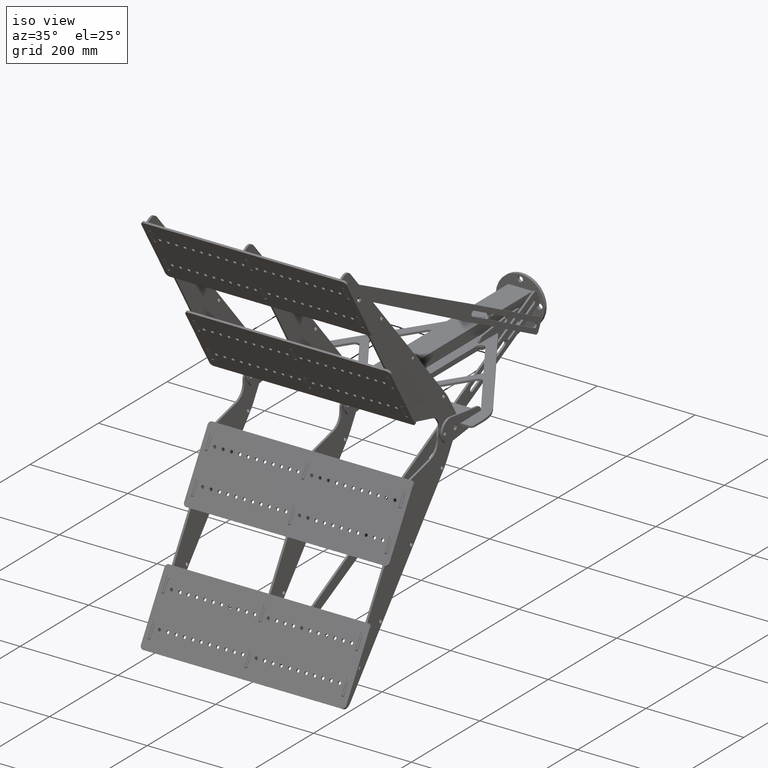
[diagram: clean part render]
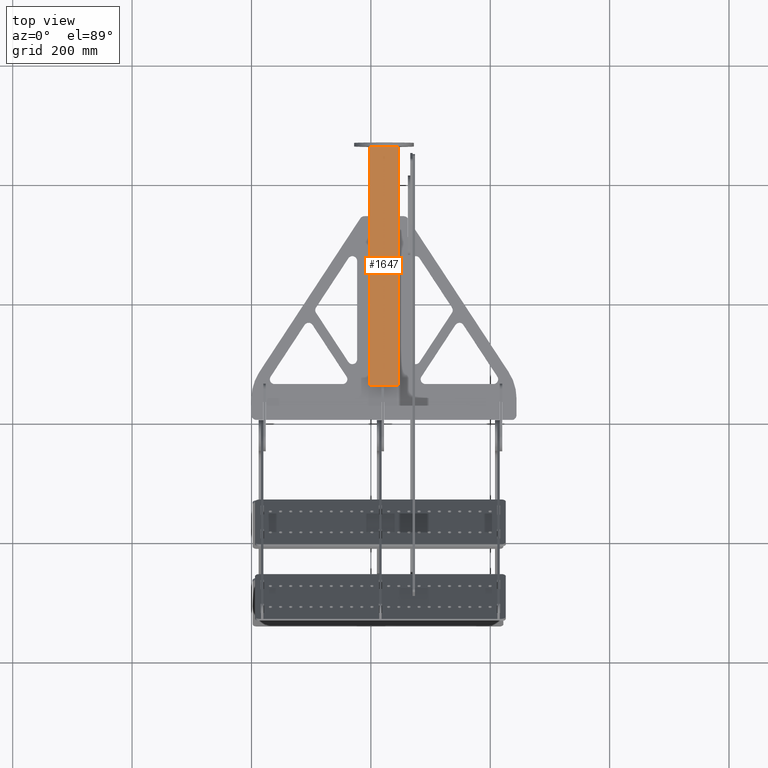
[diagram: tour spotlight — one face highlighted and labeled with its STEP entity id]
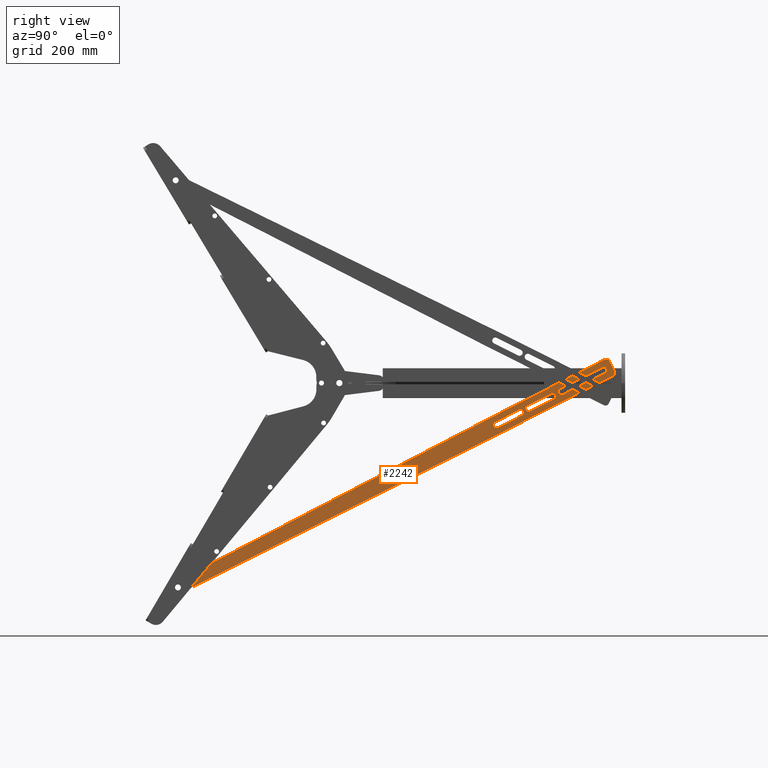
[diagram: tour spotlight — one face highlighted and labeled with its STEP entity id]
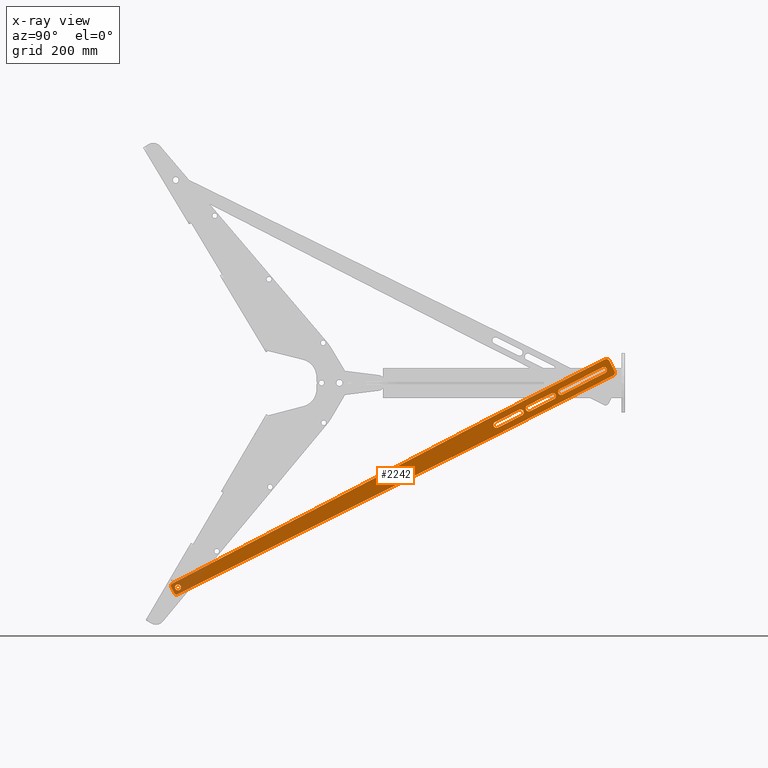
[diagram: x-ray of the same camera — body ghosted, this tour face saturated]
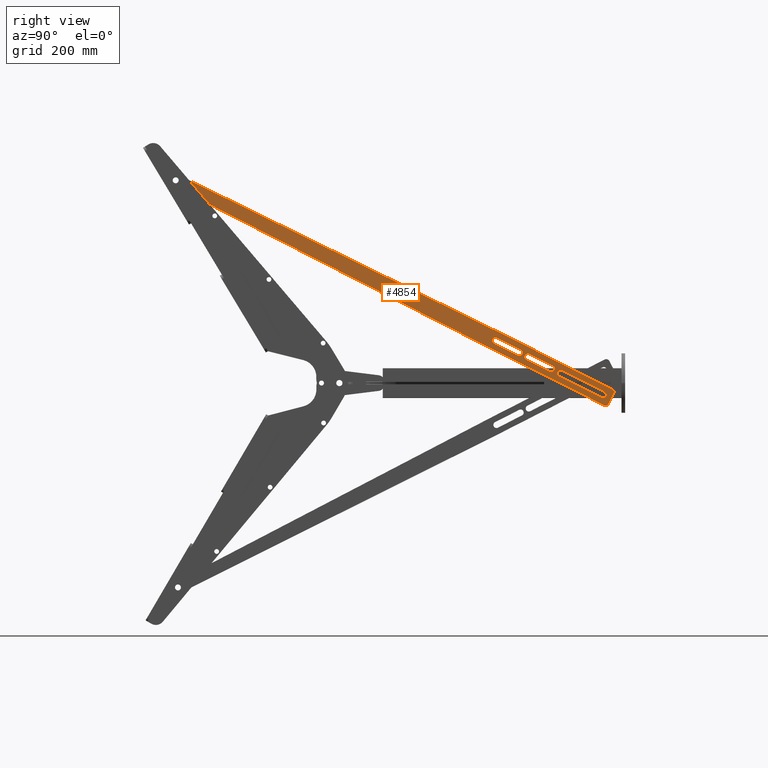
[diagram: tour spotlight — one face highlighted and labeled with its STEP entity id]
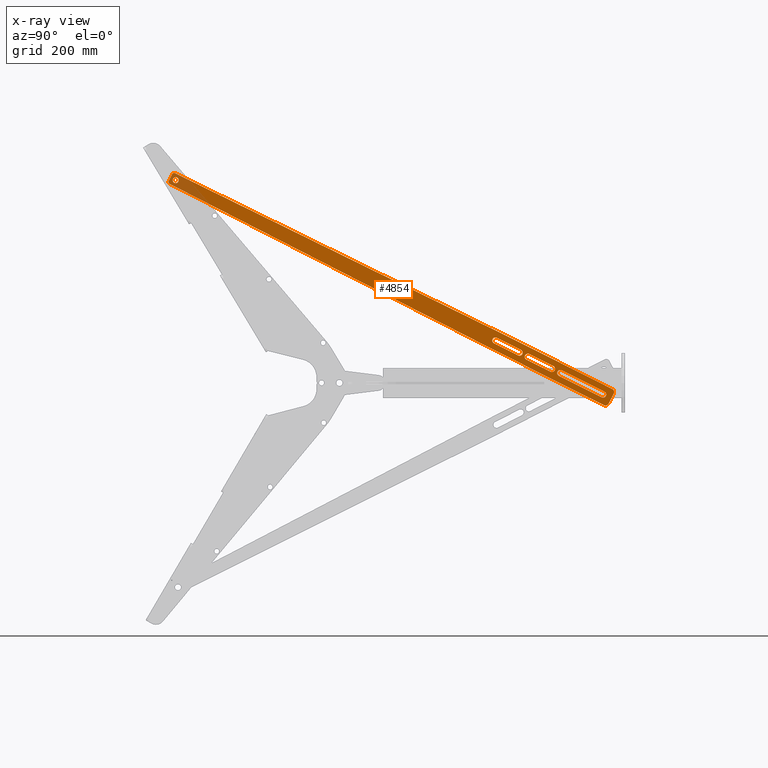
[diagram: x-ray of the same camera — body ghosted, this tour face saturated]
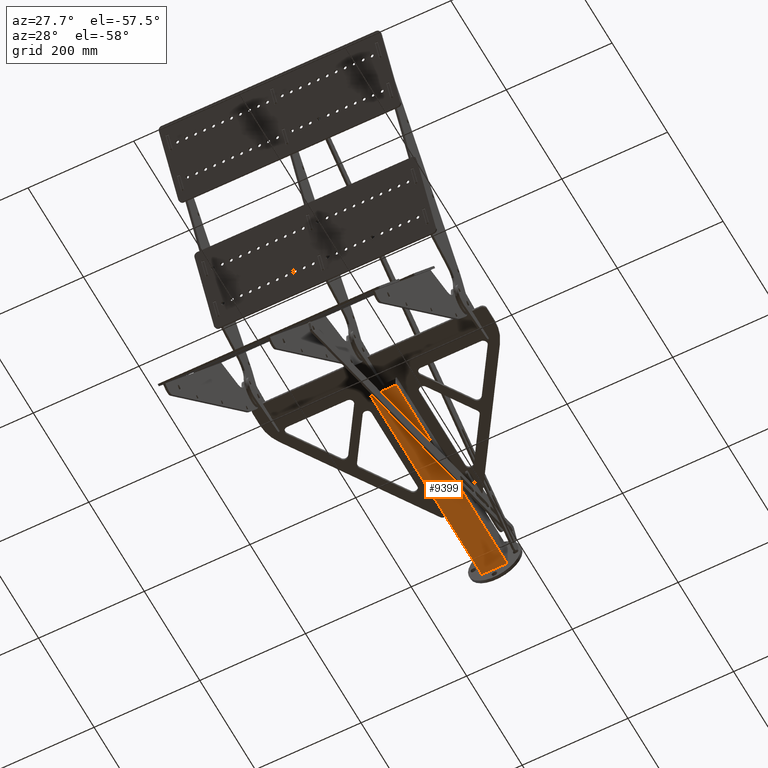
[diagram: tour spotlight — one face highlighted and labeled with its STEP entity id]
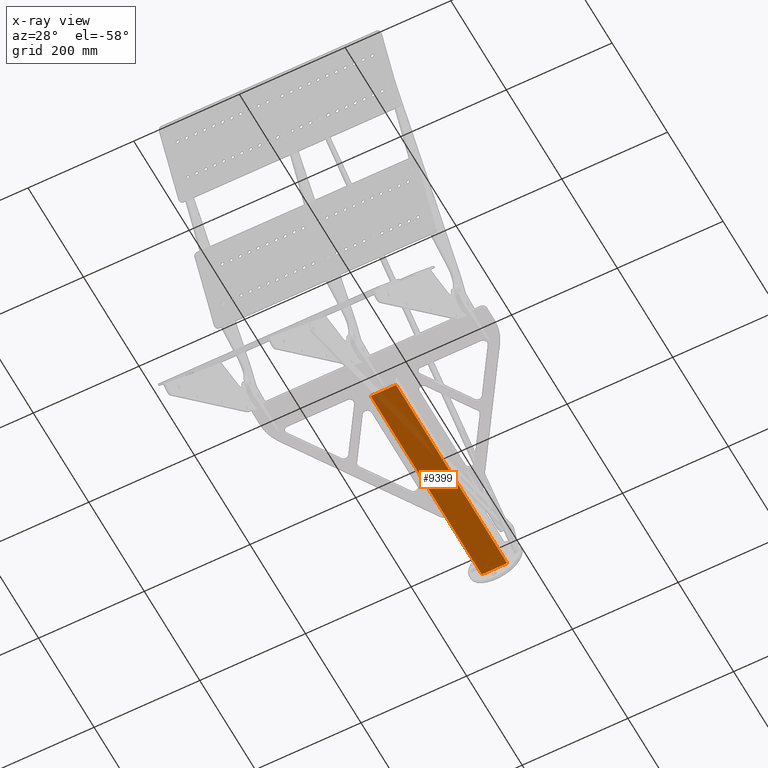
[diagram: x-ray of the same camera — body ghosted, this tour face saturated]
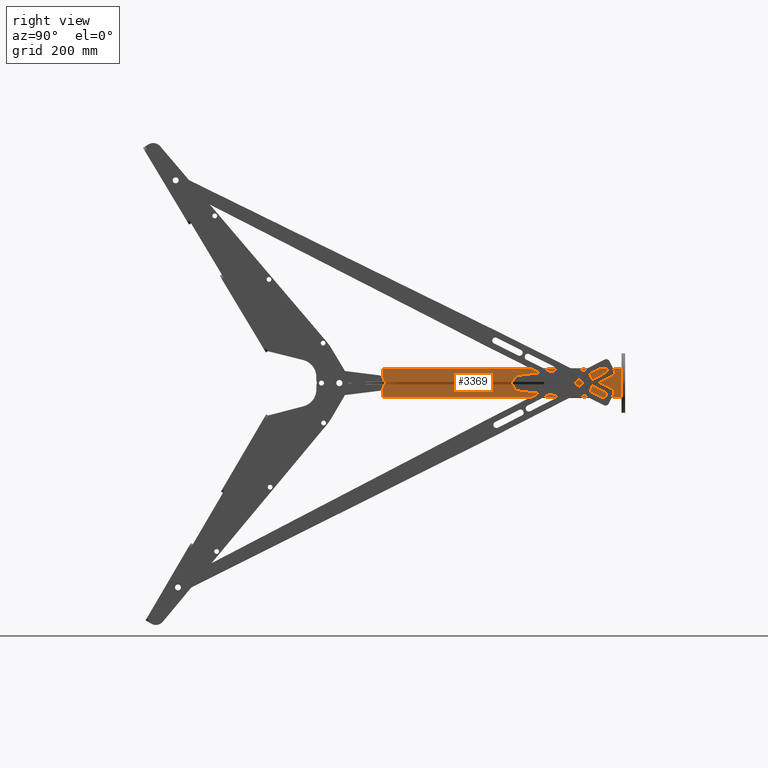
[diagram: tour spotlight — one face highlighted and labeled with its STEP entity id]
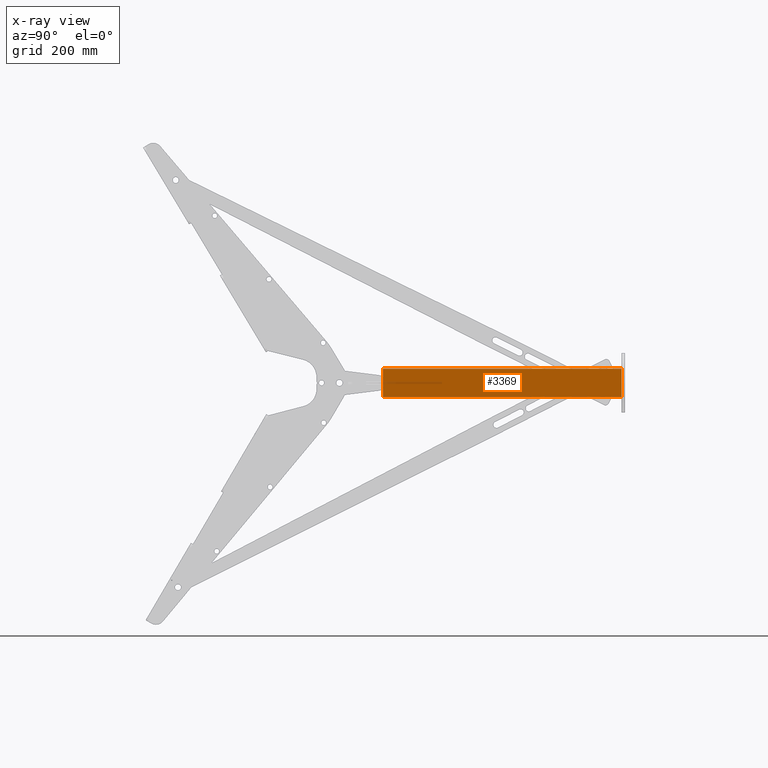
[diagram: x-ray of the same camera — body ghosted, this tour face saturated]
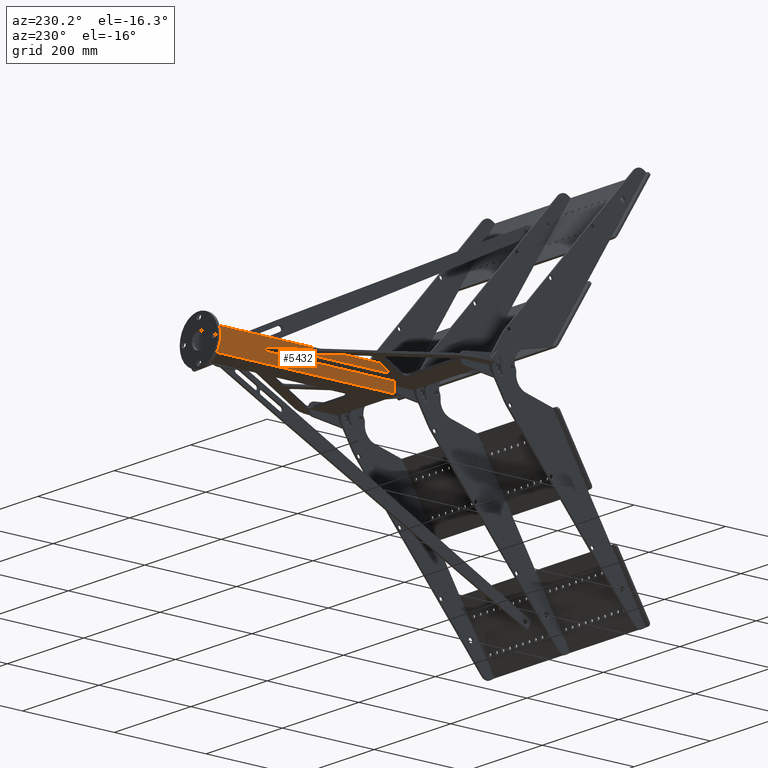
[diagram: tour spotlight — one face highlighted and labeled with its STEP entity id]
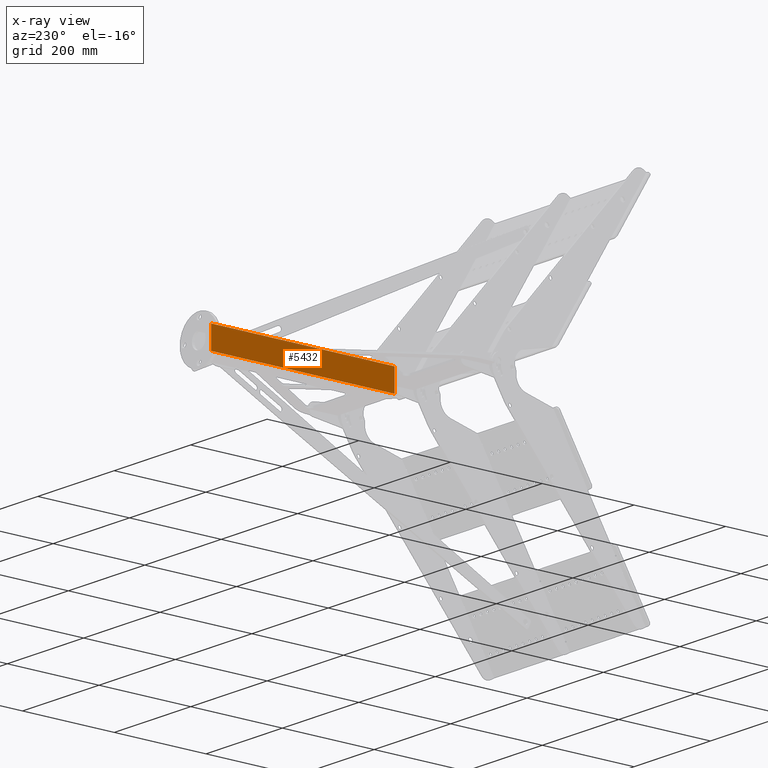
[diagram: x-ray of the same camera — body ghosted, this tour face saturated]
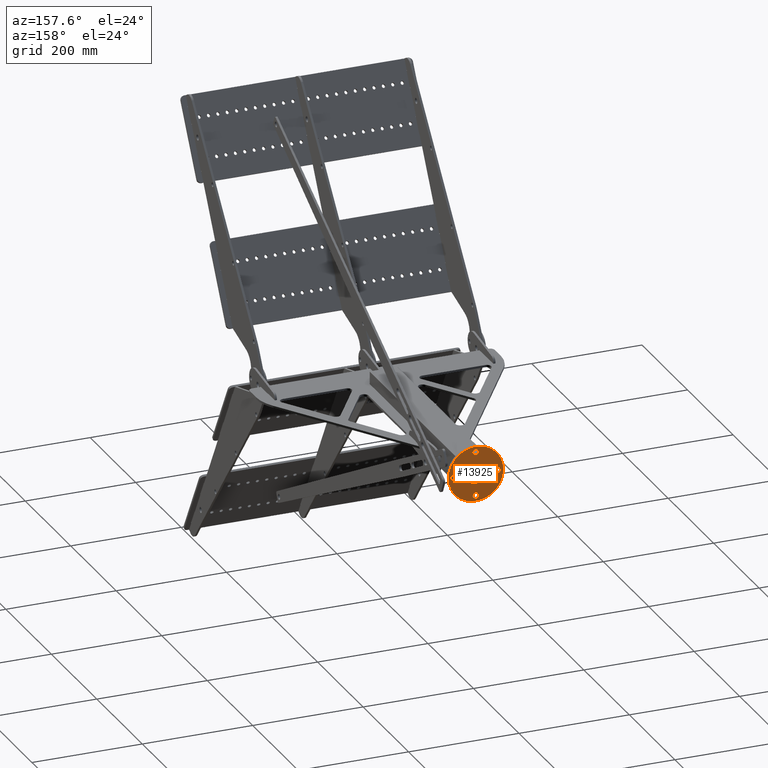
[diagram: tour spotlight — one face highlighted and labeled with its STEP entity id]
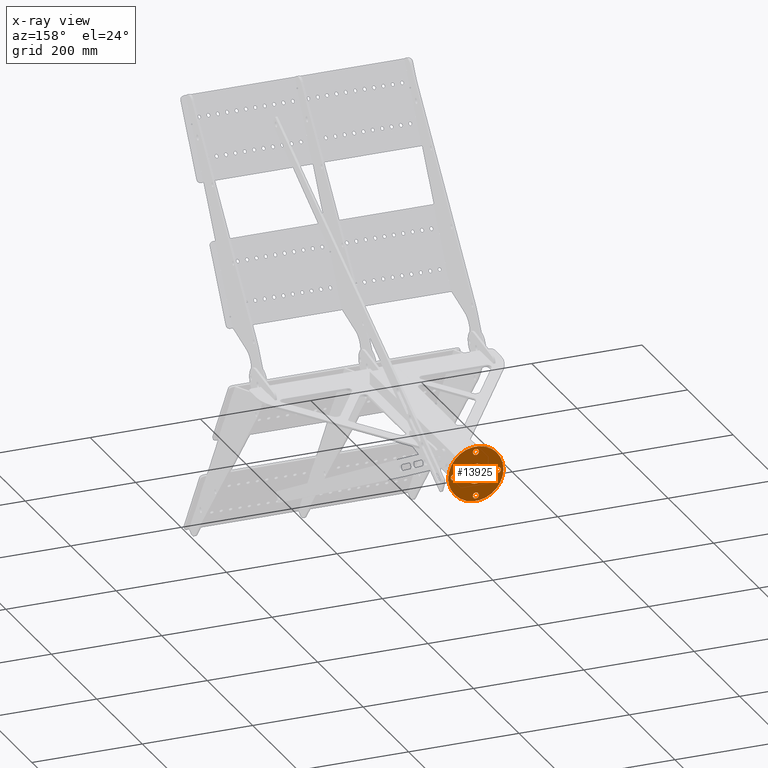
[diagram: x-ray of the same camera — body ghosted, this tour face saturated]
A machine part: a face-by-face anatomy tour. The part has 1032 B-rep faces; the first image is the clean iso view, then the 7 largest visible faces are spotlighted one at a time (largest first), each with its STEP entity span.

Face 1 — top view, entity #1647. In plain terms, the highlighted planar face has unit normal (-0, -0, -1).
Definition (entity closure, byte-faithful):
#536 = CARTESIAN_POINT ( 'NONE',  ( 1.000000000000000900, 4.163336342344337000E-014, 0.0000000000000000000 ) ) ;
#649 = ORIENTED_EDGE ( 'NONE', *, *, #12553, .F. ) ;
#1647 = ADVANCED_FACE ( 'NONE', ( #2212 ), #5972, .F. ) ;
#1662 = EDGE_CURVE ( 'NONE', #14036, #10558, #4104, .T. ) ;
#1783 = EDGE_CURVE ( 'NONE', #10558, #12033, #10462, .T. ) ;
#2212 = FACE_OUTER_BOUND ( 'NONE', #11487, .T. ) ;
#3420 = DIRECTION ( 'NONE',  ( -0.0000000000000000000, 1.000000000000000000, 0.0000000000000000000 ) ) ;
#3641 = VERTEX_POINT ( 'NONE', #12673 ) ;
#4104 = LINE ( 'NONE', #13889, #7571 ) ;
#4326 = CARTESIAN_POINT ( 'NONE',  ( 1.000000000000000900, 4.163336342344337000E-014, 400.0000000000000000 ) ) ;
#4561 = EDGE_CURVE ( 'NONE', #3641, #14036, #9189, .T. ) ;
#4733 = DIRECTION ( 'NONE',  ( -0.0000000000000000000, 0.0000000000000000000, -1.000000000000000000 ) ) ;
#5627 = DIRECTION ( 'NONE',  ( 0.0000000000000000000, -0.0000000000000000000, 1.000000000000000000 ) ) ;
#5972 = PLANE ( 'NONE',  #12382 ) ;
#6960 = VECTOR ( 'NONE', #10245, 1000.000000000000000 ) ;
#7018 = ORIENTED_EDGE ( 'NONE', *, *, #4561, .F. ) ;
#7571 = VECTOR ( 'NONE', #4733, 1000.000000000000000 ) ;
#9189 = LINE ( 'NONE', #13550, #15729 ) ;
#9200 = CARTESIAN_POINT ( 'NONE',  ( 48.99999999999998600, 4.163336342344337000E-014, 400.0000000000000000 ) ) ;
#10245 = DIRECTION ( 'NONE',  ( -1.000000000000000000, -0.0000000000000000000, -0.0000000000000000000 ) ) ;
#10462 = LINE ( 'NONE', #16747, #6960 ) ;
#10477 = ORIENTED_EDGE ( 'NONE', *, *, #1783, .F. ) ;
#10558 = VERTEX_POINT ( 'NONE', #12378 ) ;
#10988 = DIRECTION ( 'NONE',  ( 1.000000000000000000, 0.0000000000000000000, 0.0000000000000000000 ) ) ;
#11261 = CARTESIAN_POINT ( 'NONE',  ( 1.000000000000000900, 4.163336342344337000E-014, 400.0000000000000000 ) ) ;
#11487 = EDGE_LOOP ( 'NONE', ( #13779, #7018, #649, #10477 ) ) ;
#12033 = VERTEX_POINT ( 'NONE', #536 ) ;
#12378 = CARTESIAN_POINT ( 'NONE',  ( 48.99999999999998600, 4.163336342344337000E-014, 0.0000000000000000000 ) ) ;
#12382 = AXIS2_PLACEMENT_3D ( 'NONE', #11261, #3420, #12561 ) ;
#12553 = EDGE_CURVE ( 'NONE', #12033, #3641, #16487, .T. ) ;
#12561 = DIRECTION ( 'NONE',  ( 0.0000000000000000000, -0.0000000000000000000, 1.000000000000000000 ) ) ;
#12673 = CARTESIAN_POINT ( 'NONE',  ( 1.000000000000000900, 4.163336342344337000E-014, 400.0000000000000000 ) ) ;
#13550 = CARTESIAN_POINT ( 'NONE',  ( 1.000000000000000900, 4.163336342344337000E-014, 400.0000000000000000 ) ) ;
#13779 = ORIENTED_EDGE ( 'NONE', *, *, #1662, .F. ) ;
#13889 = CARTESIAN_POINT ( 'NONE',  ( 48.99999999999998600, 4.163336342344337000E-014, 400.0000000000000000 ) ) ;
#14036 = VERTEX_POINT ( 'NONE', #9200 ) ;
#15729 = VECTOR ( 'NONE', #10988, 1000.000000000000000 ) ;
#16090 = VECTOR ( 'NONE', #5627, 1000.000000000000000 ) ;
#16487 = LINE ( 'NONE', #4326, #16090 ) ;
#16747 = CARTESIAN_POINT ( 'NONE',  ( 1.000000000000000900, 4.163336342344337000E-014, 0.0000000000000000000 ) ) ;

Face 2 — right view, entity #2242. An x-ray twin of the same camera follows (body ghosted, this face saturated) — the face is partly hidden behind the body. In plain terms, the highlighted planar face has unit normal (1, 0, 0).
Definition (entity closure, byte-faithful):
#22 = AXIS2_PLACEMENT_3D ( 'NONE', #3836, #12998, #5164 ) ;
#66 = CARTESIAN_POINT ( 'NONE',  ( -98.19999999999984700, 19.19999999999987100, 4.000000000000447600 ) ) ;
#84 = CIRCLE ( 'NONE', #3111, 5.200000000000012600 ) ;
#127 = LINE ( 'NONE', #2808, #13663 ) ;
#238 = CARTESIAN_POINT ( 'NONE',  ( 73.60000000000043500, 10.00000000000009200, 4.000000000000225600 ) ) ;
#320 = VERTEX_POINT ( 'NONE', #12945 ) ;
#397 = DIRECTION ( 'NONE',  ( 1.000000000000000000, 5.551115123125767300E-017, -0.0000000000000000000 ) ) ;
#505 = ORIENTED_EDGE ( 'NONE', *, *, #567, .F. ) ;
#567 = EDGE_CURVE ( 'NONE', #8335, #13135, #10838, .T. ) ;
#660 = DIRECTION ( 'NONE',  ( 7.877038065104239500E-028, -7.186337957288756400E-028, -1.000000000000000000 ) ) ;
#743 = ORIENTED_EDGE ( 'NONE', *, *, #9050, .T. ) ;
#928 = EDGE_CURVE ( 'NONE', #16172, #16154, #13412, .T. ) ;
#945 = CIRCLE ( 'NONE', #14110, 5.200000000000009900 ) ;
#961 = DIRECTION ( 'NONE',  ( -0.9999630646787616200, 0.008594723861701880300, -0.0000000000000000000 ) ) ;
#991 = DIRECTION ( 'NONE',  ( -1.000000000000000000, 0.0000000000000000000, 0.0000000000000000000 ) ) ;
#1147 = CARTESIAN_POINT ( 'NONE',  ( -92.19999999999976100, -5.200000000000190200, 3.999999999999781500 ) ) ;
#1244 = AXIS2_PLACEMENT_3D ( 'NONE', #10816, #2935, #12108 ) ;
#1324 = DIRECTION ( 'NONE',  ( -1.000000000000000000, 0.0000000000000000000, 0.0000000000000000000 ) ) ;
#1353 = VECTOR ( 'NONE', #12771, 1000.000000000000000 ) ;
#1377 = EDGE_CURVE ( 'NONE', #14461, #4929, #14924, .T. ) ;
#1396 = CARTESIAN_POINT ( 'NONE',  ( 724.0000000000026100, 4.000000000000114600, 4.000000000000225600 ) ) ;
#1466 = DIRECTION ( 'NONE',  ( -5.551115123125767300E-017, 1.000000000000000000, -0.0000000000000000000 ) ) ;
#1509 = LINE ( 'NONE', #16419, #8484 ) ;
#1575 = DIRECTION ( 'NONE',  ( -1.000000000000000000, 0.0000000000000000000, 0.0000000000000000000 ) ) ;
#1838 = ORIENTED_EDGE ( 'NONE', *, *, #11864, .T. ) ;
#1891 = LINE ( 'NONE', #14262, #8471 ) ;
#2035 = CARTESIAN_POINT ( 'NONE',  ( -2.599999999999769200, 15.20000000000001000, 3.999999999999781500 ) ) ;
#2242 = ADVANCED_FACE ( 'N', ( #15087, #8563, #11630, #8160, #4651 ), #7882, .T. ) ;
#2299 = DIRECTION ( 'NONE',  ( 7.877038065104239500E-028, -7.186337957288756400E-028, -1.000000000000000000 ) ) ;
#2339 = DIRECTION ( 'NONE',  ( 7.877038065104239500E-028, -7.186337957288756400E-028, -1.000000000000000000 ) ) ;
#2355 = VERTEX_POINT ( 'NONE', #2035 ) ;
#2412 = CARTESIAN_POINT ( 'NONE',  ( -83.00000000000007100, 9.999999999999953800, 3.999999999999559500 ) ) ;
#2508 = ORIENTED_EDGE ( 'NONE', *, *, #3848, .F. ) ;
#2538 = EDGE_LOOP ( 'NONE', ( #12021, #5137, #10042, #10758, #14380 ) ) ;
#2607 = ORIENTED_EDGE ( 'NONE', *, *, #10365, .T. ) ;
#2709 = CARTESIAN_POINT ( 'NONE',  ( 12.80000000000036700, 15.20000000000012000, 3.999999999999781500 ) ) ;
#2721 = DIRECTION ( 'NONE',  ( 0.0000000000000000000, -1.000000000000000000, 7.186337957288756400E-028 ) ) ;
#2808 = CARTESIAN_POINT ( 'NONE',  ( 728.0000000000019300, 4.000000000000114600, 4.000000000000114600 ) ) ;
#2882 = EDGE_CURVE ( 'NONE', #8335, #15651, #14866, .T. ) ;
#2935 = DIRECTION ( 'NONE',  ( 7.877038065104239500E-028, -7.186337957288756400E-028, -1.000000000000000000 ) ) ;
#3009 = CARTESIAN_POINT ( 'NONE',  ( 58.20000000000045800, 15.20000000000021600, 4.000000000000003600 ) ) ;
#3079 = CIRCLE ( 'NONE', #11564, 5.200000000000024200 ) ;
#3111 = AXIS2_PLACEMENT_3D ( 'NONE', #12666, #9178, #1324 ) ;
#3167 = ORIENTED_EDGE ( 'NONE', *, *, #928, .T. ) ;
#3187 = CIRCLE ( 'NONE', #3265, 5.200000000000009900 ) ;
#3265 = AXIS2_PLACEMENT_3D ( 'NONE', #5216, #14364, #6528 ) ;
#3334 = ORIENTED_EDGE ( 'NONE', *, *, #9390, .T. ) ;
#3346 = AXIS2_PLACEMENT_3D ( 'NONE', #3899, #13074, #5219 ) ;
#3591 = VERTEX_POINT ( 'NONE', #6078 ) ;
#3709 = VECTOR ( 'NONE', #12324, 1000.000000000000000 ) ;
#3745 = DIRECTION ( 'NONE',  ( -1.000000000000000000, 0.0000000000000000000, 0.0000000000000000000 ) ) ;
#3788 = DIRECTION ( 'NONE',  ( 7.877038065104239500E-028, -7.186337957288756400E-028, -1.000000000000000000 ) ) ;
#3836 = CARTESIAN_POINT ( 'NONE',  ( 73.60000000000043500, 10.00000000000009200, 4.000000000000225600 ) ) ;
#3848 = EDGE_CURVE ( 'NONE', #320, #10008, #10747, .T. ) ;
#3854 = CARTESIAN_POINT ( 'NONE',  ( -92.19999999999977500, 25.19999999999993500, 4.000000000000003600 ) ) ;
#3865 = EDGE_CURVE ( 'NONE', #9762, #7370, #10309, .T. ) ;
#3899 = CARTESIAN_POINT ( 'NONE',  ( 718.0000000000023900, 10.00000000000009200, 3.999999999999781500 ) ) ;
#4048 = LINE ( 'NONE', #5434, #6712 ) ;
#4235 = ORIENTED_EDGE ( 'NONE', *, *, #11886, .T. ) ;
#4250 = DIRECTION ( 'NONE',  ( 7.877038065104239500E-028, -7.186337957288756400E-028, -1.000000000000000000 ) ) ;
#4284 = EDGE_CURVE ( 'NONE', #6840, #15927, #12862, .T. ) ;
#4365 = AXIS2_PLACEMENT_3D ( 'NONE', #10183, #2299, #11484 ) ;
#4424 = EDGE_CURVE ( 'NONE', #15611, #9430, #945, .T. ) ;
#4583 = AXIS2_PLACEMENT_3D ( 'NONE', #4861, #14000, #6156 ) ;
#4587 = CARTESIAN_POINT ( 'NONE',  ( 119.0000000000007700, 25.20000000000003800, 3.999999999999633200 ) ) ;
#4651 = FACE_BOUND ( 'NONE', #10049, .T. ) ;
#4861 = CARTESIAN_POINT ( 'NONE',  ( 12.80000000000058900, 9.999999999999870300, 3.999999999999781500 ) ) ;
#4929 = VERTEX_POINT ( 'NONE', #3854 ) ;
#4946 = CARTESIAN_POINT ( 'NONE',  ( -92.20000000000000300, -5.200000000000190200, 3.999999999999781500 ) ) ;
#4993 = DIRECTION ( 'NONE',  ( -1.000000000000000000, -5.551115123125767300E-017, -0.0000000000000000000 ) ) ;
#5062 = CARTESIAN_POINT ( 'NONE',  ( 12.80000000000014500, 15.20000000000035500, 4.000000000000003600 ) ) ;
#5137 = ORIENTED_EDGE ( 'NONE', *, *, #15863, .T. ) ;
#5164 = DIRECTION ( 'NONE',  ( -1.000000000000000000, 0.0000000000000000000, 0.0000000000000000000 ) ) ;
#5216 = CARTESIAN_POINT ( 'NONE',  ( -83.00000000000007100, 9.999999999999953800, 3.999999999999559500 ) ) ;
#5219 = DIRECTION ( 'NONE',  ( -1.000000000000000000, 0.0000000000000000000, 0.0000000000000000000 ) ) ;
#5434 = CARTESIAN_POINT ( 'NONE',  ( 119.0000000000005000, -5.199999999999816300, 4.000000000000003600 ) ) ;
#5588 = EDGE_LOOP ( 'NONE', ( #7900, #10126 ) ) ;
#5604 = VERTEX_POINT ( 'NONE', #9470 ) ;
#5626 = ORIENTED_EDGE ( 'NONE', *, *, #5766, .T. ) ;
#5647 = VECTOR ( 'NONE', #397, 1000.000000000000000 ) ;
#5656 = ORIENTED_EDGE ( 'NONE', *, *, #12902, .F. ) ;
#5677 = VERTEX_POINT ( 'NONE', #3009 ) ;
#5766 = EDGE_CURVE ( 'NONE', #2355, #5604, #84, .T. ) ;
#5851 = VERTEX_POINT ( 'NONE', #2709 ) ;
#5883 = DIRECTION ( 'NONE',  ( 7.877038065104239500E-028, -7.186337957288756400E-028, -1.000000000000000000 ) ) ;
#6029 = ORIENTED_EDGE ( 'NONE', *, *, #4424, .T. ) ;
#6078 = CARTESIAN_POINT ( 'NONE',  ( 58.20000000000044300, 4.800000000000203200, 4.000000000000003600 ) ) ;
#6112 = ORIENTED_EDGE ( 'NONE', *, *, #1377, .F. ) ;
#6156 = DIRECTION ( 'NONE',  ( -1.000000000000000000, 0.0000000000000000000, 0.0000000000000000000 ) ) ;
#6163 = ORIENTED_EDGE ( 'NONE', *, *, #12850, .T. ) ;
#6336 = EDGE_CURVE ( 'NONE', #6385, #15611, #15619, .T. ) ;
#6385 = VERTEX_POINT ( 'NONE', #13877 ) ;
#6528 = DIRECTION ( 'NONE',  ( -1.000000000000000000, 0.0000000000000000000, 0.0000000000000000000 ) ) ;
#6699 = AXIS2_PLACEMENT_3D ( 'NONE', #11641, #3788, #12958 ) ;
#6712 = VECTOR ( 'NONE', #15831, 1000.000000000000000 ) ;
#6840 = VERTEX_POINT ( 'NONE', #12591 ) ;
#7203 = ORIENTED_EDGE ( 'NONE', *, *, #6336, .T. ) ;
#7210 = CARTESIAN_POINT ( 'NONE',  ( 723.0000000000023900, 10.00000000000009200, 3.999999999999781500 ) ) ;
#7215 = EDGE_CURVE ( 'NONE', #9047, #14149, #8126, .T. ) ;
#7370 = VERTEX_POINT ( 'NONE', #14936 ) ;
#7421 = VECTOR ( 'NONE', #14325, 1000.000000000000000 ) ;
#7512 = EDGE_CURVE ( 'NONE', #5677, #5851, #16061, .T. ) ;
#7576 = AXIS2_PLACEMENT_3D ( 'NONE', #1396, #10597, #2721 ) ;
#7751 = DIRECTION ( 'NONE',  ( -1.000000000000000000, -5.551115123125767300E-017, -0.0000000000000000000 ) ) ;
#7882 = PLANE ( 'NONE',  #7576 ) ;
#7900 = ORIENTED_EDGE ( 'NONE', *, *, #10847, .T. ) ;
#8006 = VECTOR ( 'NONE', #4993, 1000.000000000000000 ) ;
#8066 = CARTESIAN_POINT ( 'NONE',  ( -98.19999999999984700, 19.20000000000010600, 4.000000000000447600 ) ) ;
#8126 = CIRCLE ( 'NONE', #1244, 5.000000000000004400 ) ;
#8160 = FACE_OUTER_BOUND ( 'NONE', #15071, .T. ) ;
#8227 = CARTESIAN_POINT ( 'NONE',  ( 73.60000000000046300, 4.799999999999998900, 4.000000000000225600 ) ) ;
#8335 = VERTEX_POINT ( 'NONE', #1147 ) ;
#8414 = LINE ( 'NONE', #8877, #15345 ) ;
#8471 = VECTOR ( 'NONE', #7751, 1000.000000000000000 ) ;
#8484 = VECTOR ( 'NONE', #8608, 1000.000000000000000 ) ;
#8540 = CARTESIAN_POINT ( 'NONE',  ( 724.0000000000026100, 4.000000000000114600, 4.000000000000114600 ) ) ;
#8557 = CARTESIAN_POINT ( 'NONE',  ( -83.00000000000001400, 15.19999999999991000, 3.999999999999670500 ) ) ;
#8563 = FACE_BOUND ( 'NONE', #16396, .T. ) ;
#8608 = DIRECTION ( 'NONE',  ( -1.000000000000000000, -5.551115123125767300E-017, -0.0000000000000000000 ) ) ;
#8764 = EDGE_CURVE ( 'NONE', #8790, #9989, #3187, .T. ) ;
#8790 = VERTEX_POINT ( 'NONE', #15727 ) ;
#8849 = DIRECTION ( 'NONE',  ( 7.877038065104239500E-028, -7.186337957288756400E-028, -1.000000000000000000 ) ) ;
#8877 = CARTESIAN_POINT ( 'NONE',  ( 119.0000000000006000, 25.20000000000008500, 3.999999999999781500 ) ) ;
#9047 = VERTEX_POINT ( 'NONE', #7210 ) ;
#9050 = EDGE_CURVE ( 'NONE', #9989, #12711, #16470, .T. ) ;
#9133 = LINE ( 'NONE', #8227, #5647 ) ;
#9178 = DIRECTION ( 'NONE',  ( 7.877038065104239500E-028, -7.186337957288756400E-028, -1.000000000000000000 ) ) ;
#9390 = EDGE_CURVE ( 'NONE', #10630, #4929, #1509, .T. ) ;
#9424 = DIRECTION ( 'NONE',  ( 7.877038065104239500E-028, -7.186337957288756400E-028, -1.000000000000000000 ) ) ;
#9430 = VERTEX_POINT ( 'NONE', #11283 ) ;
#9470 = CARTESIAN_POINT ( 'NONE',  ( -2.599999999999712800, 4.799999999999958100, 3.999999999999781500 ) ) ;
#9531 = AXIS2_PLACEMENT_3D ( 'NONE', #10222, #2339, #11521 ) ;
#9538 = CARTESIAN_POINT ( 'NONE',  ( 713.0000000000023900, 10.00000000000009200, 3.999999999999781500 ) ) ;
#9575 = CARTESIAN_POINT ( 'NONE',  ( -98.19999999999984700, 0.7999999999997521300, 4.000000000000114600 ) ) ;
#9596 = EDGE_CURVE ( 'NONE', #16172, #9430, #1891, .T. ) ;
#9762 = VERTEX_POINT ( 'NONE', #14603 ) ;
#9844 = DIRECTION ( 'NONE',  ( -1.000000000000000000, 0.0000000000000000000, 0.0000000000000000000 ) ) ;
#9885 = CARTESIAN_POINT ( 'NONE',  ( 728.0000000000020500, 16.00000000000008500, 3.999999999999948000 ) ) ;
#9989 = VERTEX_POINT ( 'NONE', #13733 ) ;
#10008 = VERTEX_POINT ( 'NONE', #9885 ) ;
#10035 = CIRCLE ( 'NONE', #3346, 5.000000000000004400 ) ;
#10042 = ORIENTED_EDGE ( 'NONE', *, *, #10539, .F. ) ;
#10049 = EDGE_LOOP ( 'NONE', ( #14434, #3167, #12379, #7203, #6029 ) ) ;
#10126 = ORIENTED_EDGE ( 'NONE', *, *, #7215, .T. ) ;
#10157 = AXIS2_PLACEMENT_3D ( 'NONE', #8540, #660, #9844 ) ;
#10183 = CARTESIAN_POINT ( 'NONE',  ( 119.0000000000006000, 9.999999999999980500, 3.999999999999337400 ) ) ;
#10222 = CARTESIAN_POINT ( 'NONE',  ( -92.19999999999983200, 19.19999999999971900, 4.000000000000447600 ) ) ;
#10296 = LINE ( 'NONE', #8066, #16832 ) ;
#10309 = CIRCLE ( 'NONE', #10157, 4.000000000000003600 ) ;
#10365 = EDGE_CURVE ( 'NONE', #14461, #13135, #10296, .T. ) ;
#10502 = CARTESIAN_POINT ( 'NONE',  ( 119.0000000000006500, -5.199999999999936200, 3.999999999999929800 ) ) ;
#10539 = EDGE_CURVE ( 'NONE', #6840, #3591, #10721, .T. ) ;
#10597 = DIRECTION ( 'NONE',  ( 6.723298176339379800E-028, 7.186337957288756400E-028, 1.000000000000000000 ) ) ;
#10630 = VERTEX_POINT ( 'NONE', #4587 ) ;
#10721 = LINE ( 'NONE', #10974, #3709 ) ;
#10747 = CIRCLE ( 'NONE', #11052, 4.000000000000003600 ) ;
#10758 = ORIENTED_EDGE ( 'NONE', *, *, #4284, .T. ) ;
#10816 = CARTESIAN_POINT ( 'NONE',  ( 718.0000000000023900, 10.00000000000009200, 3.999999999999781500 ) ) ;
#10838 = CIRCLE ( 'NONE', #6699, 6.000000000000019500 ) ;
#10847 = EDGE_CURVE ( 'NONE', #14149, #9047, #10035, .T. ) ;
#10974 = CARTESIAN_POINT ( 'NONE',  ( 12.80000000000042200, 4.800000000000221000, 4.000000000000003600 ) ) ;
#11052 = AXIS2_PLACEMENT_3D ( 'NONE', #13736, #5883, #15034 ) ;
#11126 = ORIENTED_EDGE ( 'NONE', *, *, #14998, .F. ) ;
#11283 = CARTESIAN_POINT ( 'NONE',  ( 73.60000000000036400, 15.20000000000020700, 3.999999999999781500 ) ) ;
#11484 = DIRECTION ( 'NONE',  ( -1.000000000000000000, 0.0000000000000000000, 0.0000000000000000000 ) ) ;
#11521 = DIRECTION ( 'NONE',  ( -1.000000000000000000, 0.0000000000000000000, 0.0000000000000000000 ) ) ;
#11564 = AXIS2_PLACEMENT_3D ( 'NONE', #16674, #8849, #991 ) ;
#11586 = DIRECTION ( 'NONE',  ( 7.877038065104239500E-028, -7.186337957288756400E-028, -1.000000000000000000 ) ) ;
#11630 = FACE_BOUND ( 'NONE', #5588, .T. ) ;
#11641 = CARTESIAN_POINT ( 'NONE',  ( -92.19999999999977500, 0.7999999999999118900, 3.999999999999781500 ) ) ;
#11864 = EDGE_CURVE ( 'NONE', #9762, #10008, #127, .T. ) ;
#11886 = EDGE_CURVE ( 'NONE', #15651, #7370, #4048, .T. ) ;
#12021 = ORIENTED_EDGE ( 'NONE', *, *, #7512, .F. ) ;
#12091 = CARTESIAN_POINT ( 'NONE',  ( 12.80000000000058900, 9.999999999999870300, 3.999999999999781500 ) ) ;
#12108 = DIRECTION ( 'NONE',  ( -1.000000000000000000, 0.0000000000000000000, 0.0000000000000000000 ) ) ;
#12319 = ORIENTED_EDGE ( 'NONE', *, *, #2882, .T. ) ;
#12324 = DIRECTION ( 'NONE',  ( 1.000000000000000000, -3.885780586188036100E-016, -0.0000000000000000000 ) ) ;
#12379 = ORIENTED_EDGE ( 'NONE', *, *, #12566, .F. ) ;
#12566 = EDGE_CURVE ( 'NONE', #6385, #16154, #9133, .T. ) ;
#12569 = VECTOR ( 'NONE', #12884, 1000.000000000000000 ) ;
#12591 = CARTESIAN_POINT ( 'NONE',  ( 12.80000000000056000, 4.800000000000038900, 4.000000000000003600 ) ) ;
#12666 = CARTESIAN_POINT ( 'NONE',  ( -2.599999999999713700, 10.00000000000009200, 3.999999999999781500 ) ) ;
#12676 = AXIS2_PLACEMENT_3D ( 'NONE', #12091, #4250, #13407 ) ;
#12711 = VERTEX_POINT ( 'NONE', #8557 ) ;
#12771 = DIRECTION ( 'NONE',  ( 1.000000000000000000, 5.551115123125767300E-017, -0.0000000000000000000 ) ) ;
#12834 = CARTESIAN_POINT ( 'NONE',  ( -82.99999999999995700, 15.19999999999991000, 3.999999999999781500 ) ) ;
#12850 = EDGE_CURVE ( 'NONE', #320, #10630, #8414, .T. ) ;
#12862 = CIRCLE ( 'NONE', #12676, 5.200000000000014400 ) ;
#12884 = DIRECTION ( 'NONE',  ( -1.000000000000000000, -3.885780586188036100E-016, -0.0000000000000000000 ) ) ;
#12902 = EDGE_CURVE ( 'NONE', #2355, #12711, #14941, .T. ) ;
#12945 = CARTESIAN_POINT ( 'NONE',  ( 723.9999999999766900, 20.00000000000021300, 3.999999999999781500 ) ) ;
#12958 = DIRECTION ( 'NONE',  ( -1.000000000000000000, 0.0000000000000000000, 0.0000000000000000000 ) ) ;
#12963 = CARTESIAN_POINT ( 'NONE',  ( -82.99999999999957400, 4.799999999999832000, 3.999999999999948000 ) ) ;
#12998 = DIRECTION ( 'NONE',  ( 7.877038065104239500E-028, -7.186337957288756400E-028, -1.000000000000000000 ) ) ;
#13074 = DIRECTION ( 'NONE',  ( 7.877038065104239500E-028, -7.186337957288756400E-028, -1.000000000000000000 ) ) ;
#13135 = VERTEX_POINT ( 'NONE', #9575 ) ;
#13313 = EDGE_CURVE ( 'NONE', #15927, #5851, #16334, .T. ) ;
#13407 = DIRECTION ( 'NONE',  ( -1.000000000000000000, 0.0000000000000000000, 0.0000000000000000000 ) ) ;
#13412 = CIRCLE ( 'NONE', #4365, 5.200000000000009900 ) ;
#13500 = AXIS2_PLACEMENT_3D ( 'NONE', #2412, #11586, #3745 ) ;
#13608 = CARTESIAN_POINT ( 'NONE',  ( 119.0000000000006000, 4.800000000000001600, 3.999999999999781500 ) ) ;
#13663 = VECTOR ( 'NONE', #1466, 1000.000000000000000 ) ;
#13733 = CARTESIAN_POINT ( 'NONE',  ( -88.20000000000008800, 9.999999999999953800, 3.999999999999559500 ) ) ;
#13736 = CARTESIAN_POINT ( 'NONE',  ( 724.0000000000022700, 16.00000000000043000, 3.999999999999781500 ) ) ;
#13877 = CARTESIAN_POINT ( 'NONE',  ( 73.60000000000052000, 4.800000000000040700, 4.000000000000225600 ) ) ;
#14000 = DIRECTION ( 'NONE',  ( 7.877038065104239500E-028, -7.186337957288756400E-028, -1.000000000000000000 ) ) ;
#14110 = AXIS2_PLACEMENT_3D ( 'NONE', #238, #9424, #1575 ) ;
#14149 = VERTEX_POINT ( 'NONE', #9538 ) ;
#14167 = CARTESIAN_POINT ( 'NONE',  ( 7.600000000000574300, 9.999999999999870300, 3.999999999999781500 ) ) ;
#14262 = CARTESIAN_POINT ( 'NONE',  ( 73.60000000000027900, 15.20000000000024100, 3.999999999999337400 ) ) ;
#14325 = DIRECTION ( 'NONE',  ( 1.000000000000000000, 5.551115123125767300E-017, -0.0000000000000000000 ) ) ;
#14331 = ORIENTED_EDGE ( 'NONE', *, *, #8764, .T. ) ;
#14334 = ORIENTED_EDGE ( 'NONE', *, *, #3865, .F. ) ;
#14364 = DIRECTION ( 'NONE',  ( 7.877038065104239500E-028, -7.186337957288756400E-028, -1.000000000000000000 ) ) ;
#14380 = ORIENTED_EDGE ( 'NONE', *, *, #13313, .T. ) ;
#14434 = ORIENTED_EDGE ( 'NONE', *, *, #9596, .F. ) ;
#14461 = VERTEX_POINT ( 'NONE', #66 ) ;
#14603 = CARTESIAN_POINT ( 'NONE',  ( 728.0000000000022700, 4.000000000000072800, 4.000000000000114600 ) ) ;
#14792 = LINE ( 'NONE', #12963, #7421 ) ;
#14866 = LINE ( 'NONE', #4946, #1353 ) ;
#14924 = CIRCLE ( 'NONE', #9531, 6.000000000000019500 ) ;
#14936 = CARTESIAN_POINT ( 'NONE',  ( 724.0000000000141000, 5.957278009246060400E-014, 4.000000000000058600 ) ) ;
#14941 = LINE ( 'NONE', #12834, #8006 ) ;
#14998 = EDGE_CURVE ( 'NONE', #8790, #5604, #14792, .T. ) ;
#15034 = DIRECTION ( 'NONE',  ( -1.000000000000000000, 0.0000000000000000000, 0.0000000000000000000 ) ) ;
#15071 = EDGE_LOOP ( 'NONE', ( #12319, #4235, #14334, #1838, #2508, #6163, #3334, #6112, #2607, #505 ) ) ;
#15087 = FACE_BOUND ( 'NONE', #2538, .T. ) ;
#15345 = VECTOR ( 'NONE', #961, 1000.000000000000000 ) ;
#15611 = VERTEX_POINT ( 'NONE', #15612 ) ;
#15612 = CARTESIAN_POINT ( 'NONE',  ( 68.40000000000041800, 10.00000000000009200, 4.000000000000225600 ) ) ;
#15619 = CIRCLE ( 'NONE', #22, 5.200000000000009900 ) ;
#15651 = VERTEX_POINT ( 'NONE', #10502 ) ;
#15727 = CARTESIAN_POINT ( 'NONE',  ( -83.00000000000004300, 4.799999999999887900, 3.999999999999948000 ) ) ;
#15831 = DIRECTION ( 'NONE',  ( 0.9999630646787616200, 0.008594723861701269700, -0.0000000000000000000 ) ) ;
#15863 = EDGE_CURVE ( 'NONE', #5677, #3591, #3079, .T. ) ;
#15900 = DIRECTION ( 'NONE',  ( 5.551115123125767300E-017, -1.000000000000000000, -0.0000000000000000000 ) ) ;
#15927 = VERTEX_POINT ( 'NONE', #14167 ) ;
#16061 = LINE ( 'NONE', #5062, #12569 ) ;
#16154 = VERTEX_POINT ( 'NONE', #13608 ) ;
#16172 = VERTEX_POINT ( 'NONE', #16275 ) ;
#16275 = CARTESIAN_POINT ( 'NONE',  ( 119.0000000000006400, 15.20000000000011800, 3.999999999999337400 ) ) ;
#16334 = CIRCLE ( 'NONE', #4583, 5.200000000000014400 ) ;
#16396 = EDGE_LOOP ( 'NONE', ( #11126, #14331, #743, #5656, #5626 ) ) ;
#16419 = CARTESIAN_POINT ( 'NONE',  ( -92.19999999999974700, 25.19999999999999900, 3.999999999999559500 ) ) ;
#16470 = CIRCLE ( 'NONE', #13500, 5.200000000000009900 ) ;
#16674 = CARTESIAN_POINT ( 'NONE',  ( 58.20000000000052900, 10.00000000000003900, 4.000000000000003600 ) ) ;
#16832 = VECTOR ( 'NONE', #15900, 1000.000000000000000 ) ;

Face 3 — right view, entity #4854. An x-ray twin of the same camera follows (body ghosted, this face saturated) — the face is partly hidden behind the body. In plain terms, the highlighted planar face has unit normal (-1, -0, 0).
Definition (entity closure, byte-faithful):
#10 = CARTESIAN_POINT ( 'NONE',  ( 728.0000000000019300, 16.00000000000008500, 2.220446049250328700E-013 ) ) ;
#172 = EDGE_CURVE ( 'NONE', #10062, #5422, #3868, .T. ) ;
#285 = VECTOR ( 'NONE', #6569, 1000.000000000000000 ) ;
#298 = VERTEX_POINT ( 'NONE', #10 ) ;
#349 = VERTEX_POINT ( 'NONE', #15614 ) ;
#378 = EDGE_CURVE ( 'NONE', #5472, #16103, #11038, .T. ) ;
#457 = CARTESIAN_POINT ( 'NONE',  ( -83.00000000000002800, 4.799999999999943000, -1.110223024623782900E-013 ) ) ;
#540 = FACE_BOUND ( 'NONE', #14718, .T. ) ;
#570 = DIRECTION ( 'NONE',  ( 0.9999630646787616200, 0.008594723861701725900, -6.784931098776514500E-028 ) ) ;
#691 = CARTESIAN_POINT ( 'NONE',  ( 724.0000000000021600, 15.19999999999996400, 2.220446049250232800E-013 ) ) ;
#786 = ORIENTED_EDGE ( 'NONE', *, *, #3512, .F. ) ;
#802 = DIRECTION ( 'NONE',  ( 7.877038065104239500E-028, -7.186337957288756400E-028, -1.000000000000000000 ) ) ;
#1011 = AXIS2_PLACEMENT_3D ( 'NONE', #1652, #10846, #2976 ) ;
#1062 = CARTESIAN_POINT ( 'NONE',  ( 723.9999999999828300, 20.00000000000021300, 2.220446049250298900E-013 ) ) ;
#1105 = VERTEX_POINT ( 'NONE', #7892 ) ;
#1133 = AXIS2_PLACEMENT_3D ( 'NONE', #3303, #12450, #4613 ) ;
#1265 = CARTESIAN_POINT ( 'NONE',  ( -83.00000000000007100, 9.999999999999953800, -4.440892098500626200E-013 ) ) ;
#1292 = CARTESIAN_POINT ( 'NONE',  ( -2.599999999999712800, 4.800000000000045100, 1.110223024626376300E-013 ) ) ;
#1417 = CARTESIAN_POINT ( 'NONE',  ( -92.19999999999977500, 0.7999999999999118900, 0.0000000000000000000 ) ) ;
#1460 = VERTEX_POINT ( 'NONE', #10407 ) ;
#1502 = AXIS2_PLACEMENT_3D ( 'NONE', #7801, #16949, #9094 ) ;
#1522 = EDGE_CURVE ( 'NONE', #1703, #1105, #5308, .T. ) ;
#1611 = EDGE_CURVE ( 'NONE', #2122, #7209, #12286, .T. ) ;
#1652 = CARTESIAN_POINT ( 'NONE',  ( 724.0000000000022700, 16.00000000000043000, 2.220446049250313100E-013 ) ) ;
#1671 = CARTESIAN_POINT ( 'NONE',  ( 119.0000000000008800, 25.20000000000013400, 2.220446049252922800E-013 ) ) ;
#1703 = VERTEX_POINT ( 'NONE', #11369 ) ;
#1873 = CIRCLE ( 'NONE', #2649, 6.000000000000019500 ) ;
#1996 = DIRECTION ( 'NONE',  ( -0.0000000000000000000, 1.000000000000000000, -7.186337957288756400E-028 ) ) ;
#2122 = VERTEX_POINT ( 'NONE', #10175 ) ;
#2269 = AXIS2_PLACEMENT_3D ( 'NONE', #13383, #5521, #14679 ) ;
#2540 = CIRCLE ( 'NONE', #2269, 5.000000000000004400 ) ;
#2599 = DIRECTION ( 'NONE',  ( -1.000000000000000000, 0.0000000000000000000, -7.964461062327508000E-028 ) ) ;
#2624 = AXIS2_PLACEMENT_3D ( 'NONE', #1265, #10478, #2599 ) ;
#2631 = CARTESIAN_POINT ( 'NONE',  ( -92.19999999999983200, 19.19999999999971900, 0.0000000000000000000 ) ) ;
#2636 = VERTEX_POINT ( 'NONE', #16156 ) ;
#2649 = AXIS2_PLACEMENT_3D ( 'NONE', #1417, #10619, #2735 ) ;
#2690 = EDGE_LOOP ( 'NONE', ( #12210, #4008, #9794, #2902, #11693, #5374, #16881, #15052, #14200, #15350 ) ) ;
#2719 = VECTOR ( 'NONE', #10957, 1000.000000000000000 ) ;
#2735 = DIRECTION ( 'NONE',  ( -1.000000000000000000, -2.665330340693523000E-014, -7.877038065104048500E-028 ) ) ;
#2746 = DIRECTION ( 'NONE',  ( 7.877038065104239500E-028, -7.186337957288756400E-028, -1.000000000000000000 ) ) ;
#2894 = LINE ( 'NONE', #7567, #9437 ) ;
#2902 = ORIENTED_EDGE ( 'NONE', *, *, #16533, .F. ) ;
#2976 = DIRECTION ( 'NONE',  ( -1.000000000000000000, 0.0000000000000000000, -7.888609052210110900E-028 ) ) ;
#3077 = EDGE_LOOP ( 'NONE', ( #7122, #4853, #11795, #11002, #3182 ) ) ;
#3099 = CARTESIAN_POINT ( 'NONE',  ( 724.0000000000021600, 25.20000000000019500, 2.220446049250160600E-013 ) ) ;
#3149 = VERTEX_POINT ( 'NONE', #9793 ) ;
#3171 = CARTESIAN_POINT ( 'NONE',  ( -88.20000000000008800, 9.999999999999953800, -4.440892098500666600E-013 ) ) ;
#3182 = ORIENTED_EDGE ( 'NONE', *, *, #15696, .F. ) ;
#3303 = CARTESIAN_POINT ( 'NONE',  ( 73.60000000000043500, 10.00000000000009200, 2.220446049250313100E-013 ) ) ;
#3367 = CARTESIAN_POINT ( 'NONE',  ( -92.19999999999976100, -5.200000000000200900, 1.110223024626566400E-013 ) ) ;
#3459 = AXIS2_PLACEMENT_3D ( 'NONE', #3876, #13049, #5198 ) ;
#3512 = EDGE_CURVE ( 'NONE', #1460, #5505, #16445, .T. ) ;
#3542 = CARTESIAN_POINT ( 'NONE',  ( 12.80000000000058900, 9.999999999999870300, -2.220446049250313100E-013 ) ) ;
#3632 = FACE_BOUND ( 'NONE', #3077, .T. ) ;
#3678 = LINE ( 'NONE', #4083, #7179 ) ;
#3744 = DIRECTION ( 'NONE',  ( 7.877038065104239500E-028, -7.186337957288756400E-028, -1.000000000000000000 ) ) ;
#3868 = LINE ( 'NONE', #6456, #13516 ) ;
#3876 = CARTESIAN_POINT ( 'NONE',  ( 119.0000000000006000, 9.999999999999980500, 0.0000000000000000000 ) ) ;
#3953 = DIRECTION ( 'NONE',  ( -1.000000000000000000, -7.459310946700246500E-014, -7.877038065103704100E-028 ) ) ;
#4008 = ORIENTED_EDGE ( 'NONE', *, *, #172, .F. ) ;
#4060 = FACE_OUTER_BOUND ( 'NONE', #2690, .T. ) ;
#4083 = CARTESIAN_POINT ( 'NONE',  ( 724.0000000000021600, 4.799999999999943000, 2.220446049250307500E-013 ) ) ;
#4125 = AXIS2_PLACEMENT_3D ( 'NONE', #11584, #3744, #12909 ) ;
#4174 = DIRECTION ( 'NONE',  ( -1.000000000000000000, 4.831589288279796400E-055, 6.723298176339379800E-028 ) ) ;
#4310 = EDGE_CURVE ( 'NONE', #5800, #8094, #16327, .T. ) ;
#4613 = DIRECTION ( 'NONE',  ( -1.000000000000000000, 0.0000000000000000000, -7.869646049680752200E-028 ) ) ;
#4853 = ORIENTED_EDGE ( 'NONE', *, *, #9140, .F. ) ;
#4854 = ADVANCED_FACE ( 'NONE', ( #11031, #540, #7137, #4060, #3632 ), #6176, .F. ) ;
#4865 = DIRECTION ( 'NONE',  ( -1.000000000000000000, 0.0000000000000000000, -7.869646049680745000E-028 ) ) ;
#4871 = AXIS2_PLACEMENT_3D ( 'NONE', #10629, #2746, #11914 ) ;
#5198 = DIRECTION ( 'NONE',  ( -1.000000000000000000, 0.0000000000000000000, -7.877038065104240400E-028 ) ) ;
#5243 = ORIENTED_EDGE ( 'NONE', *, *, #15460, .F. ) ;
#5288 = EDGE_CURVE ( 'NONE', #8721, #8429, #8697, .T. ) ;
#5308 = LINE ( 'NONE', #11882, #8384 ) ;
#5374 = ORIENTED_EDGE ( 'NONE', *, *, #9904, .F. ) ;
#5379 = VERTEX_POINT ( 'NONE', #14159 ) ;
#5410 = EDGE_CURVE ( 'NONE', #5379, #12314, #10787, .T. ) ;
#5422 = VERTEX_POINT ( 'NONE', #16798 ) ;
#5472 = VERTEX_POINT ( 'NONE', #15641 ) ;
#5505 = VERTEX_POINT ( 'NONE', #13094 ) ;
#5521 = DIRECTION ( 'NONE',  ( 7.877038065104239500E-028, -7.186337957288756400E-028, -1.000000000000000000 ) ) ;
#5641 = VERTEX_POINT ( 'NONE', #6965 ) ;
#5800 = VERTEX_POINT ( 'NONE', #11885 ) ;
#5923 = CARTESIAN_POINT ( 'NONE',  ( 724.0000000000021600, 15.19999999999996400, 2.220446049250232800E-013 ) ) ;
#5969 = VERTEX_POINT ( 'NONE', #1671 ) ;
#6061 = ORIENTED_EDGE ( 'NONE', *, *, #14395, .F. ) ;
#6132 = ORIENTED_EDGE ( 'NONE', *, *, #1522, .F. ) ;
#6176 = PLANE ( 'NONE',  #13328 ) ;
#6185 = DIRECTION ( 'NONE',  ( 7.877038065104239500E-028, -7.186337957288756400E-028, -1.000000000000000000 ) ) ;
#6285 = VERTEX_POINT ( 'NONE', #1062 ) ;
#6306 = DIRECTION ( 'NONE',  ( 6.723298176339379800E-028, 7.186337957288756400E-028, 1.000000000000000000 ) ) ;
#6374 = DIRECTION ( 'NONE',  ( -7.877038065104239500E-028, 7.186337957288756400E-028, 1.000000000000000000 ) ) ;
#6435 = CARTESIAN_POINT ( 'NONE',  ( 728.0000000000021600, 4.000000000000072800, 4.440892098500641800E-013 ) ) ;
#6456 = CARTESIAN_POINT ( 'NONE',  ( 724.0000000000021600, -5.200000000000204500, 2.220446049250379200E-013 ) ) ;
#6498 = CARTESIAN_POINT ( 'NONE',  ( -98.19999999999984700, 4.000000000000114600, 2.220446049255840900E-013 ) ) ;
#6507 = EDGE_CURVE ( 'NONE', #16797, #2636, #12960, .T. ) ;
#6538 = CIRCLE ( 'NONE', #1011, 4.000000000000003600 ) ;
#6569 = DIRECTION ( 'NONE',  ( 1.000000000000000000, -4.831589288279796400E-055, -6.723298176339379800E-028 ) ) ;
#6660 = DIRECTION ( 'NONE',  ( -1.000000000000000000, 4.831589288279796400E-055, 6.723298176339379800E-028 ) ) ;
#6823 = EDGE_CURVE ( 'NONE', #12314, #298, #8254, .T. ) ;
#6874 = CARTESIAN_POINT ( 'NONE',  ( 718.0000000000023900, 10.00000000000009200, -2.220446049250313100E-013 ) ) ;
#6936 = VECTOR ( 'NONE', #14278, 1000.000000000000000 ) ;
#6965 = CARTESIAN_POINT ( 'NONE',  ( 12.80000000000054800, 4.799999999999904800, 1.194138195278306600E-025 ) ) ;
#7086 = LINE ( 'NONE', #691, #10153 ) ;
#7122 = ORIENTED_EDGE ( 'NONE', *, *, #1611, .F. ) ;
#7137 = FACE_BOUND ( 'NONE', #8312, .T. ) ;
#7179 = VECTOR ( 'NONE', #11921, 1000.000000000000000 ) ;
#7209 = VERTEX_POINT ( 'NONE', #12051 ) ;
#7474 = CIRCLE ( 'NONE', #2624, 5.200000000000009900 ) ;
#7567 = CARTESIAN_POINT ( 'NONE',  ( 724.0000000000021600, 20.00000000000009900, 2.220446049250198200E-013 ) ) ;
#7603 = ORIENTED_EDGE ( 'NONE', *, *, #6507, .F. ) ;
#7785 = EDGE_CURVE ( 'NONE', #349, #1703, #15001, .T. ) ;
#7801 = CARTESIAN_POINT ( 'NONE',  ( -83.00000000000007100, 9.999999999999953800, -4.440892098500626200E-013 ) ) ;
#7892 = CARTESIAN_POINT ( 'NONE',  ( 73.60000000000052000, 4.800000000000012300, 2.220446049250331800E-013 ) ) ;
#8028 = VERTEX_POINT ( 'NONE', #457 ) ;
#8094 = VERTEX_POINT ( 'NONE', #14903 ) ;
#8192 = DIRECTION ( 'NONE',  ( -1.000000000000000000, 0.0000000000000000000, -7.888609052210110900E-028 ) ) ;
#8254 = LINE ( 'NONE', #9906, #15177 ) ;
#8312 = EDGE_LOOP ( 'NONE', ( #11981, #6132, #11404, #6061, #786 ) ) ;
#8384 = VECTOR ( 'NONE', #6660, 1000.000000000000000 ) ;
#8422 = EDGE_LOOP ( 'NONE', ( #5243, #14524, #7603, #15989, #13162 ) ) ;
#8429 = VERTEX_POINT ( 'NONE', #8436 ) ;
#8436 = CARTESIAN_POINT ( 'NONE',  ( 12.80000000000036700, 15.19999999999994200, 3.330669073876626300E-013 ) ) ;
#8670 = CARTESIAN_POINT ( 'NONE',  ( 12.80000000000058900, 9.999999999999870300, -2.220446049250313100E-013 ) ) ;
#8697 = CIRCLE ( 'NONE', #13215, 5.200000000000014400 ) ;
#8721 = VERTEX_POINT ( 'NONE', #16889 ) ;
#8728 = EDGE_CURVE ( 'NONE', #8028, #14250, #16686, .T. ) ;
#9094 = DIRECTION ( 'NONE',  ( -1.000000000000000000, 0.0000000000000000000, -7.964461062327508000E-028 ) ) ;
#9140 = EDGE_CURVE ( 'NONE', #14250, #2122, #7474, .T. ) ;
#9288 = EDGE_CURVE ( 'NONE', #8094, #5800, #2540, .T. ) ;
#9437 = VECTOR ( 'NONE', #16644, 1000.000000000000100 ) ;
#9549 = VECTOR ( 'NONE', #570, 1000.000000000000000 ) ;
#9793 = CARTESIAN_POINT ( 'NONE',  ( -98.19999999999984700, 0.7999999999997522400, 1.110223024626520800E-013 ) ) ;
#9794 = ORIENTED_EDGE ( 'NONE', *, *, #10321, .F. ) ;
#9904 = EDGE_CURVE ( 'NONE', #5969, #5472, #14980, .T. ) ;
#9906 = CARTESIAN_POINT ( 'NONE',  ( 728.0000000000015900, 4.000000000000114600, 2.220446049250286300E-013 ) ) ;
#9985 = DIRECTION ( 'NONE',  ( -1.000000000000000000, 0.0000000000000000000, -7.869646049680745000E-028 ) ) ;
#10062 = VERTEX_POINT ( 'NONE', #3367 ) ;
#10153 = VECTOR ( 'NONE', #11195, 1000.000000000000000 ) ;
#10175 = CARTESIAN_POINT ( 'NONE',  ( -83.00000000000001400, 15.19999999999995000, 1.317644230751971300E-025 ) ) ;
#10321 = EDGE_CURVE ( 'NONE', #3149, #10062, #1873, .T. ) ;
#10407 = CARTESIAN_POINT ( 'NONE',  ( 68.40000000000041800, 10.00000000000009200, 2.220446049250272200E-013 ) ) ;
#10440 = DIRECTION ( 'NONE',  ( 1.000000000000000000, -4.831589288279796400E-055, -6.723298176339379800E-028 ) ) ;
#10478 = DIRECTION ( 'NONE',  ( 7.877038065104239500E-028, -7.186337957288756400E-028, -1.000000000000000000 ) ) ;
#10580 = LINE ( 'NONE', #15821, #14006 ) ;
#10619 = DIRECTION ( 'NONE',  ( -7.877038065104239500E-028, 7.186337957288756400E-028, 1.000000000000000000 ) ) ;
#10629 = CARTESIAN_POINT ( 'NONE',  ( -2.599999999999713700, 10.00000000000009200, 0.0000000000000000000 ) ) ;
#10753 = EDGE_CURVE ( 'NONE', #6285, #5969, #2894, .T. ) ;
#10787 = CIRCLE ( 'NONE', #13739, 4.000000000000003600 ) ;
#10846 = DIRECTION ( 'NONE',  ( -7.877038065104239500E-028, 7.186337957288756400E-028, 1.000000000000000000 ) ) ;
#10890 = EDGE_CURVE ( 'NONE', #13484, #8028, #3678, .T. ) ;
#10957 = DIRECTION ( 'NONE',  ( -1.000000000000000000, 4.831589288279796400E-055, 6.723298176339379800E-028 ) ) ;
#11002 = ORIENTED_EDGE ( 'NONE', *, *, #10890, .F. ) ;
#11028 = CARTESIAN_POINT ( 'NONE',  ( 58.20000000000045000, 15.19999999999998900, 1.110223024626236800E-013 ) ) ;
#11031 = FACE_BOUND ( 'NONE', #8422, .T. ) ;
#11038 = CIRCLE ( 'NONE', #12281, 6.000000000000019500 ) ;
#11147 = ORIENTED_EDGE ( 'NONE', *, *, #9288, .F. ) ;
#11195 = DIRECTION ( 'NONE',  ( 1.000000000000000000, -4.831589288279796400E-055, -6.723298176339379800E-028 ) ) ;
#11369 = CARTESIAN_POINT ( 'NONE',  ( 119.0000000000005800, 4.799999999999958100, 1.110223024626190900E-013 ) ) ;
#11404 = ORIENTED_EDGE ( 'NONE', *, *, #7785, .F. ) ;
#11425 = CIRCLE ( 'NONE', #11462, 5.200000000000009900 ) ;
#11462 = AXIS2_PLACEMENT_3D ( 'NONE', #14035, #6185, #15348 ) ;
#11584 = CARTESIAN_POINT ( 'NONE',  ( 58.20000000000052900, 10.00000000000003900, 0.0000000000000000000 ) ) ;
#11693 = ORIENTED_EDGE ( 'NONE', *, *, #378, .F. ) ;
#11795 = ORIENTED_EDGE ( 'NONE', *, *, #8728, .F. ) ;
#11798 = DIRECTION ( 'NONE',  ( -7.877038065104239500E-028, 7.186337957288756400E-028, 1.000000000000000000 ) ) ;
#11882 = CARTESIAN_POINT ( 'NONE',  ( 724.0000000000021600, 4.799999999999943000, 2.220446049250307500E-013 ) ) ;
#11885 = CARTESIAN_POINT ( 'NONE',  ( 723.0000000000023900, 10.00000000000009200, -2.220446049250273700E-013 ) ) ;
#11914 = DIRECTION ( 'NONE',  ( -1.000000000000000000, 0.0000000000000000000, -7.877038065104239500E-028 ) ) ;
#11921 = DIRECTION ( 'NONE',  ( -1.000000000000000000, 4.831589288279796400E-055, 6.723298176339379800E-028 ) ) ;
#11981 = ORIENTED_EDGE ( 'NONE', *, *, #16388, .F. ) ;
#11987 = CARTESIAN_POINT ( 'NONE',  ( 724.0000000000021600, 15.20000000000013300, 2.220446049250232800E-013 ) ) ;
#12051 = CARTESIAN_POINT ( 'NONE',  ( -2.599999999999769200, 15.19999999999999800, 1.110223024626338800E-013 ) ) ;
#12210 = ORIENTED_EDGE ( 'NONE', *, *, #14274, .F. ) ;
#12230 = CARTESIAN_POINT ( 'NONE',  ( -98.19999999999984700, 19.19999999999987100, 1.110223024626487500E-013 ) ) ;
#12281 = AXIS2_PLACEMENT_3D ( 'NONE', #2631, #11798, #3953 ) ;
#12286 = LINE ( 'NONE', #5923, #15757 ) ;
#12310 = AXIS2_PLACEMENT_3D ( 'NONE', #3542, #12694, #4865 ) ;
#12314 = VERTEX_POINT ( 'NONE', #6435 ) ;
#12332 = CARTESIAN_POINT ( 'NONE',  ( 119.0000000000007700, -5.199999999999968200, 2.220446049254446700E-013 ) ) ;
#12450 = DIRECTION ( 'NONE',  ( 7.877038065104239500E-028, -7.186337957288756400E-028, -1.000000000000000000 ) ) ;
#12694 = DIRECTION ( 'NONE',  ( 7.877038065104239500E-028, -7.186337957288756400E-028, -1.000000000000000000 ) ) ;
#12909 = DIRECTION ( 'NONE',  ( -1.000000000000000000, 0.0000000000000000000, -7.877038065104239500E-028 ) ) ;
#12960 = CIRCLE ( 'NONE', #4125, 5.200000000000024200 ) ;
#13039 = LINE ( 'NONE', #12332, #9549 ) ;
#13049 = DIRECTION ( 'NONE',  ( 7.877038065104239500E-028, -7.186337957288756400E-028, -1.000000000000000000 ) ) ;
#13094 = CARTESIAN_POINT ( 'NONE',  ( 73.60000000000036400, 15.20000000000012400, 1.110223024626211000E-013 ) ) ;
#13141 = CIRCLE ( 'NONE', #12310, 5.200000000000014400 ) ;
#13162 = ORIENTED_EDGE ( 'NONE', *, *, #5288, .F. ) ;
#13215 = AXIS2_PLACEMENT_3D ( 'NONE', #8670, #802, #9985 ) ;
#13328 = AXIS2_PLACEMENT_3D ( 'NONE', #14152, #6306, #15456 ) ;
#13383 = CARTESIAN_POINT ( 'NONE',  ( 718.0000000000023900, 10.00000000000009200, -2.220446049250313100E-013 ) ) ;
#13484 = VERTEX_POINT ( 'NONE', #1292 ) ;
#13516 = VECTOR ( 'NONE', #10440, 1000.000000000000000 ) ;
#13739 = AXIS2_PLACEMENT_3D ( 'NONE', #14217, #6374, #15521 ) ;
#13821 = LINE ( 'NONE', #11987, #285 ) ;
#14006 = VECTOR ( 'NONE', #4174, 1000.000000000000000 ) ;
#14035 = CARTESIAN_POINT ( 'NONE',  ( 73.60000000000043500, 10.00000000000009200, 2.220446049250313100E-013 ) ) ;
#14152 = CARTESIAN_POINT ( 'NONE',  ( 724.0000000000021600, 4.000000000000114600, 2.220446049250313100E-013 ) ) ;
#14159 = CARTESIAN_POINT ( 'NONE',  ( 724.0000000000070500, 8.985314916561705400E-014, 3.330669073875491300E-013 ) ) ;
#14200 = ORIENTED_EDGE ( 'NONE', *, *, #6823, .F. ) ;
#14217 = CARTESIAN_POINT ( 'NONE',  ( 724.0000000000026100, 4.000000000000114600, 4.440892098500626200E-013 ) ) ;
#14250 = VERTEX_POINT ( 'NONE', #3171 ) ;
#14274 = EDGE_CURVE ( 'NONE', #5422, #5379, #13039, .T. ) ;
#14278 = DIRECTION ( 'NONE',  ( 0.0000000000000000000, -1.000000000000000000, 7.186337957288756400E-028 ) ) ;
#14317 = EDGE_CURVE ( 'NONE', #8429, #16797, #7086, .T. ) ;
#14395 = EDGE_CURVE ( 'NONE', #5505, #349, #13821, .T. ) ;
#14492 = EDGE_CURVE ( 'NONE', #2636, #5641, #10580, .T. ) ;
#14524 = ORIENTED_EDGE ( 'NONE', *, *, #14492, .F. ) ;
#14679 = DIRECTION ( 'NONE',  ( -1.000000000000000000, 0.0000000000000000000, -7.888609052210110900E-028 ) ) ;
#14718 = EDGE_LOOP ( 'NONE', ( #11147, #16289 ) ) ;
#14903 = CARTESIAN_POINT ( 'NONE',  ( 713.0000000000023900, 10.00000000000009200, -2.220446049250352500E-013 ) ) ;
#14980 = LINE ( 'NONE', #3099, #2719 ) ;
#15001 = CIRCLE ( 'NONE', #3459, 5.200000000000009900 ) ;
#15052 = ORIENTED_EDGE ( 'NONE', *, *, #15795, .F. ) ;
#15177 = VECTOR ( 'NONE', #1996, 1000.000000000000000 ) ;
#15297 = AXIS2_PLACEMENT_3D ( 'NONE', #6874, #16015, #8192 ) ;
#15348 = DIRECTION ( 'NONE',  ( -1.000000000000000000, 0.0000000000000000000, -7.869646049680752200E-028 ) ) ;
#15350 = ORIENTED_EDGE ( 'NONE', *, *, #5410, .F. ) ;
#15456 = DIRECTION ( 'NONE',  ( 0.0000000000000000000, -1.000000000000000000, 7.186337957288756400E-028 ) ) ;
#15460 = EDGE_CURVE ( 'NONE', #5641, #8721, #13141, .T. ) ;
#15521 = DIRECTION ( 'NONE',  ( -1.000000000000000000, 0.0000000000000000000, -7.888609052210110900E-028 ) ) ;
#15614 = CARTESIAN_POINT ( 'NONE',  ( 119.0000000000006400, 15.20000000000009500, 1.110223024626134700E-013 ) ) ;
#15641 = CARTESIAN_POINT ( 'NONE',  ( -92.19999999999977500, 25.19999999999996400, -2.155901387186798400E-027 ) ) ;
#15696 = EDGE_CURVE ( 'NONE', #7209, #13484, #16346, .T. ) ;
#15757 = VECTOR ( 'NONE', #16393, 1000.000000000000000 ) ;
#15795 = EDGE_CURVE ( 'NONE', #298, #6285, #6538, .T. ) ;
#15821 = CARTESIAN_POINT ( 'NONE',  ( 724.0000000000021600, 4.800000000000054000, 2.220446049250307500E-013 ) ) ;
#15989 = ORIENTED_EDGE ( 'NONE', *, *, #14317, .F. ) ;
#16015 = DIRECTION ( 'NONE',  ( 7.877038065104239500E-028, -7.186337957288756400E-028, -1.000000000000000000 ) ) ;
#16103 = VERTEX_POINT ( 'NONE', #12230 ) ;
#16156 = CARTESIAN_POINT ( 'NONE',  ( 58.20000000000044300, 4.800000000000091300, 1.110223024626293000E-013 ) ) ;
#16289 = ORIENTED_EDGE ( 'NONE', *, *, #4310, .F. ) ;
#16327 = CIRCLE ( 'NONE', #15297, 5.000000000000004400 ) ;
#16346 = CIRCLE ( 'NONE', #4871, 5.200000000000012600 ) ;
#16388 = EDGE_CURVE ( 'NONE', #1105, #1460, #11425, .T. ) ;
#16393 = DIRECTION ( 'NONE',  ( 1.000000000000000000, -4.831589288279796400E-055, -6.723298176339379800E-028 ) ) ;
#16445 = CIRCLE ( 'NONE', #1133, 5.200000000000009900 ) ;
#16533 = EDGE_CURVE ( 'NONE', #16103, #3149, #16957, .T. ) ;
#16644 = DIRECTION ( 'NONE',  ( -0.9999630646787616200, 0.008594723861701887200, 6.661064953326837500E-028 ) ) ;
#16686 = CIRCLE ( 'NONE', #1502, 5.200000000000009900 ) ;
#16797 = VERTEX_POINT ( 'NONE', #11028 ) ;
#16798 = CARTESIAN_POINT ( 'NONE',  ( 119.0000000005306800, -5.199999999997718400, 2.220446049253068700E-013 ) ) ;
#16881 = ORIENTED_EDGE ( 'NONE', *, *, #10753, .F. ) ;
#16889 = CARTESIAN_POINT ( 'NONE',  ( 7.600000000000574300, 9.999999999999870300, -2.220446049250354000E-013 ) ) ;
#16949 = DIRECTION ( 'NONE',  ( 7.877038065104239500E-028, -7.186337957288756400E-028, -1.000000000000000000 ) ) ;
#16957 = LINE ( 'NONE', #6498, #6936 ) ;

Face 4 — auxiliary view, entity #9399. An x-ray twin of the same camera follows (body ghosted, this face saturated) — the face is partly hidden behind the body. In plain terms, the highlighted planar face has unit normal (0, 0, 1).
Definition (entity closure, byte-faithful):
#784 = CARTESIAN_POINT ( 'NONE',  ( 1.000000000000000900, 50.00000000000000000, 400.0000000000000000 ) ) ;
#1311 = LINE ( 'NONE', #12698, #7464 ) ;
#1645 = DIRECTION ( 'NONE',  ( -1.000000000000000000, -0.0000000000000000000, -9.263812993340750700E-035 ) ) ;
#1799 = CARTESIAN_POINT ( 'NONE',  ( 48.99999999999998600, 50.00000000000000000, 1.111657559200889700E-033 ) ) ;
#2099 = DIRECTION ( 'NONE',  ( 0.0000000000000000000, 0.0000000000000000000, -1.000000000000000000 ) ) ;
#2311 = EDGE_CURVE ( 'NONE', #16142, #10128, #12232, .T. ) ;
#2711 = EDGE_CURVE ( 'NONE', #8517, #16283, #7909, .T. ) ;
#3324 = CARTESIAN_POINT ( 'NONE',  ( 1.000000000000000900, 50.00000000000000000, 400.0000000000000000 ) ) ;
#3365 = EDGE_CURVE ( 'NONE', #16142, #16283, #1311, .T. ) ;
#4570 = DIRECTION ( 'NONE',  ( -0.0000000000000000000, -0.0000000000000000000, 1.000000000000000000 ) ) ;
#4999 = FACE_OUTER_BOUND ( 'NONE', #14778, .T. ) ;
#5278 = VECTOR ( 'NONE', #4570, 1000.000000000000000 ) ;
#5910 = CARTESIAN_POINT ( 'NONE',  ( 1.000000000000000900, 50.00000000000000000, 400.0000000000000000 ) ) ;
#6131 = ORIENTED_EDGE ( 'NONE', *, *, #2311, .F. ) ;
#7304 = CARTESIAN_POINT ( 'NONE',  ( 1.000000000000000900, 50.00000000000000000, 0.0000000000000000000 ) ) ;
#7464 = VECTOR ( 'NONE', #1645, 1000.000000000000000 ) ;
#7909 = LINE ( 'NONE', #5910, #14455 ) ;
#8334 = CARTESIAN_POINT ( 'NONE',  ( 1.000000000000000900, 50.00000000000000000, 400.0000000000000000 ) ) ;
#8517 = VERTEX_POINT ( 'NONE', #3324 ) ;
#8830 = LINE ( 'NONE', #8334, #15366 ) ;
#8983 = AXIS2_PLACEMENT_3D ( 'NONE', #784, #9968, #2099 ) ;
#9399 = ADVANCED_FACE ( 'NONE', ( #4999 ), #15109, .F. ) ;
#9643 = DIRECTION ( 'NONE',  ( -1.000000000000000000, -0.0000000000000000000, -9.263812993340750700E-035 ) ) ;
#9968 = DIRECTION ( 'NONE',  ( 0.0000000000000000000, -1.000000000000000000, 0.0000000000000000000 ) ) ;
#10128 = VERTEX_POINT ( 'NONE', #15364 ) ;
#10525 = EDGE_CURVE ( 'NONE', #10128, #8517, #8830, .T. ) ;
#11225 = ORIENTED_EDGE ( 'NONE', *, *, #2711, .F. ) ;
#12232 = LINE ( 'NONE', #12423, #5278 ) ;
#12423 = CARTESIAN_POINT ( 'NONE',  ( 48.99999999999998600, 50.00000000000000000, 400.0000000000000000 ) ) ;
#12698 = CARTESIAN_POINT ( 'NONE',  ( 1.000000000000000900, 50.00000000000000000, 0.0000000000000000000 ) ) ;
#13050 = ORIENTED_EDGE ( 'NONE', *, *, #10525, .F. ) ;
#13712 = DIRECTION ( 'NONE',  ( 0.0000000000000000000, 0.0000000000000000000, -1.000000000000000000 ) ) ;
#14455 = VECTOR ( 'NONE', #13712, 1000.000000000000000 ) ;
#14778 = EDGE_LOOP ( 'NONE', ( #11225, #13050, #6131, #16816 ) ) ;
#15109 = PLANE ( 'NONE',  #8983 ) ;
#15364 = CARTESIAN_POINT ( 'NONE',  ( 48.99999999999998600, 50.00000000000000000, 400.0000000000000000 ) ) ;
#15366 = VECTOR ( 'NONE', #9643, 1000.000000000000000 ) ;
#16142 = VERTEX_POINT ( 'NONE', #1799 ) ;
#16283 = VERTEX_POINT ( 'NONE', #7304 ) ;
#16816 = ORIENTED_EDGE ( 'NONE', *, *, #3365, .T. ) ;

Face 5 — right view, entity #3369. An x-ray twin of the same camera follows (body ghosted, this face saturated) — the face is partly hidden behind the body. In plain terms, the highlighted planar face has unit normal (-1, 0, 0).
Definition (entity closure, byte-faithful):
#363 = CARTESIAN_POINT ( 'NONE',  ( 49.99999999999998600, 1.000000000000007800, 400.0000000000000000 ) ) ;
#588 = EDGE_CURVE ( 'NONE', #10820, #9941, #6928, .T. ) ;
#879 = FACE_OUTER_BOUND ( 'NONE', #10507, .T. ) ;
#1690 = DIRECTION ( 'NONE',  ( 9.263812993340750700E-035, 0.0000000000000000000, 1.000000000000000000 ) ) ;
#1733 = DIRECTION ( 'NONE',  ( 9.263812993340750700E-035, -0.0000000000000000000, 1.000000000000000000 ) ) ;
#1814 = LINE ( 'NONE', #6449, #16987 ) ;
#1826 = VERTEX_POINT ( 'NONE', #15480 ) ;
#1844 = EDGE_CURVE ( 'NONE', #13237, #1826, #1814, .T. ) ;
#1860 = CARTESIAN_POINT ( 'NONE',  ( 49.99999999999998600, 48.99999999999999300, 400.0000000000000000 ) ) ;
#3369 = ADVANCED_FACE ( 'NONE', ( #879 ), #12137, .F. ) ;
#4027 = VECTOR ( 'NONE', #12348, 1000.000000000000000 ) ;
#4989 = AXIS2_PLACEMENT_3D ( 'NONE', #363, #9555, #1690 ) ;
#5930 = CARTESIAN_POINT ( 'NONE',  ( 49.99999999999998600, 1.000000000000004400, 400.0000000000000000 ) ) ;
#6449 = CARTESIAN_POINT ( 'NONE',  ( 49.99999999999998600, 1.000000000000039100, 400.0000000000000000 ) ) ;
#6476 = VECTOR ( 'NONE', #1733, 1000.000000000000000 ) ;
#6480 = CARTESIAN_POINT ( 'NONE',  ( 49.99999999999998600, 1.000000000000004400, 1.088498026717537900E-033 ) ) ;
#6928 = LINE ( 'NONE', #8996, #13480 ) ;
#6967 = CARTESIAN_POINT ( 'NONE',  ( 49.99999999999998600, 1.000000000000007500, 400.0000000000000000 ) ) ;
#7516 = ORIENTED_EDGE ( 'NONE', *, *, #12037, .F. ) ;
#8905 = ORIENTED_EDGE ( 'NONE', *, *, #588, .T. ) ;
#8996 = CARTESIAN_POINT ( 'NONE',  ( 49.99999999999998600, 1.000000000000000900, 4.539268366736966500E-033 ) ) ;
#9555 = DIRECTION ( 'NONE',  ( -1.000000000000000000, 0.0000000000000000000, 9.263812993340750700E-035 ) ) ;
#9941 = VERTEX_POINT ( 'NONE', #11019 ) ;
#10507 = EDGE_LOOP ( 'NONE', ( #7516, #10998, #13255, #8905 ) ) ;
#10820 = VERTEX_POINT ( 'NONE', #6480 ) ;
#10998 = ORIENTED_EDGE ( 'NONE', *, *, #1844, .F. ) ;
#11019 = CARTESIAN_POINT ( 'NONE',  ( 49.99999999999998600, 49.00000000000000000, -4.631906496670379600E-035 ) ) ;
#12037 = EDGE_CURVE ( 'NONE', #1826, #9941, #14478, .T. ) ;
#12137 = PLANE ( 'NONE',  #4989 ) ;
#12348 = DIRECTION ( 'NONE',  ( -9.263812993340750700E-035, -0.0000000000000000000, -1.000000000000000000 ) ) ;
#12598 = EDGE_CURVE ( 'NONE', #10820, #13237, #12599, .T. ) ;
#12599 = LINE ( 'NONE', #6967, #6476 ) ;
#13237 = VERTEX_POINT ( 'NONE', #5930 ) ;
#13255 = ORIENTED_EDGE ( 'NONE', *, *, #12598, .F. ) ;
#13480 = VECTOR ( 'NONE', #14266, 1000.000000000000000 ) ;
#14266 = DIRECTION ( 'NONE',  ( 0.0000000000000000000, 1.000000000000000000, -0.0000000000000000000 ) ) ;
#14290 = DIRECTION ( 'NONE',  ( 0.0000000000000000000, 1.000000000000000000, -0.0000000000000000000 ) ) ;
#14478 = LINE ( 'NONE', #1860, #4027 ) ;
#15480 = CARTESIAN_POINT ( 'NONE',  ( 49.99999999999998600, 49.00000000000000000, 400.0000000000000000 ) ) ;
#16987 = VECTOR ( 'NONE', #14290, 1000.000000000000000 ) ;

Face 6 — auxiliary view, entity #5432. An x-ray twin of the same camera follows (body ghosted, this face saturated) — the face is partly hidden behind the body. In plain terms, the highlighted planar face has unit normal (1, -0, -0).
Definition (entity closure, byte-faithful):
#206 = VECTOR ( 'NONE', #14939, 1000.000000000000000 ) ;
#257 = VECTOR ( 'NONE', #4818, 1000.000000000000000 ) ;
#276 = FACE_OUTER_BOUND ( 'NONE', #4626, .T. ) ;
#431 = EDGE_CURVE ( 'NONE', #2708, #3015, #10654, .T. ) ;
#1286 = ORIENTED_EDGE ( 'NONE', *, *, #8415, .F. ) ;
#1366 = DIRECTION ( 'NONE',  ( -0.0000000000000000000, -1.000000000000000000, 0.0000000000000000000 ) ) ;
#2333 = VERTEX_POINT ( 'NONE', #13737 ) ;
#2708 = VERTEX_POINT ( 'NONE', #8453 ) ;
#3015 = VERTEX_POINT ( 'NONE', #8265 ) ;
#3344 = CARTESIAN_POINT ( 'NONE',  ( 0.0000000000000000000, 48.99999999999998600, 400.0000000000000000 ) ) ;
#3497 = CARTESIAN_POINT ( 'NONE',  ( 0.0000000000000000000, 1.000000000000000900, -9.263812993340759300E-035 ) ) ;
#3640 = VECTOR ( 'NONE', #1366, 1000.000000000000000 ) ;
#3700 = LINE ( 'NONE', #11027, #206 ) ;
#4626 = EDGE_LOOP ( 'NONE', ( #1286, #16481, #15626, #9835 ) ) ;
#4636 = AXIS2_PLACEMENT_3D ( 'NONE', #5139, #14279, #6431 ) ;
#4818 = DIRECTION ( 'NONE',  ( -0.0000000000000000000, -1.000000000000000000, 0.0000000000000000000 ) ) ;
#5139 = CARTESIAN_POINT ( 'NONE',  ( 0.0000000000000000000, 1.000000000000046000, 400.0000000000000000 ) ) ;
#5432 = ADVANCED_FACE ( 'NONE', ( #276 ), #8953, .F. ) ;
#6431 = DIRECTION ( 'NONE',  ( -9.263812993340750700E-035, 0.0000000000000000000, -1.000000000000000000 ) ) ;
#7917 = CARTESIAN_POINT ( 'NONE',  ( 0.0000000000000000000, 1.000000000000039100, 400.0000000000000000 ) ) ;
#8118 = EDGE_CURVE ( 'NONE', #2333, #2708, #13953, .T. ) ;
#8265 = CARTESIAN_POINT ( 'NONE',  ( 4.336808689942017700E-016, 1.000000000000039100, 400.0000000000000000 ) ) ;
#8415 = EDGE_CURVE ( 'NONE', #3015, #16259, #3700, .T. ) ;
#8453 = CARTESIAN_POINT ( 'NONE',  ( 0.0000000000000000000, 48.99999999999999300, 400.0000000000000000 ) ) ;
#8953 = PLANE ( 'NONE',  #4636 ) ;
#9256 = VECTOR ( 'NONE', #13814, 1000.000000000000000 ) ;
#9464 = EDGE_CURVE ( 'NONE', #2333, #16259, #16876, .T. ) ;
#9835 = ORIENTED_EDGE ( 'NONE', *, *, #9464, .T. ) ;
#10654 = LINE ( 'NONE', #7917, #3640 ) ;
#11027 = CARTESIAN_POINT ( 'NONE',  ( 8.673617379884035500E-016, 1.000000000000039100, 400.0000000000000000 ) ) ;
#13737 = CARTESIAN_POINT ( 'NONE',  ( 0.0000000000000000000, 48.99999999999999300, 4.631906496670379600E-035 ) ) ;
#13814 = DIRECTION ( 'NONE',  ( 9.263812993340750700E-035, -0.0000000000000000000, 1.000000000000000000 ) ) ;
#13953 = LINE ( 'NONE', #3344, #9256 ) ;
#14279 = DIRECTION ( 'NONE',  ( 1.000000000000000000, 0.0000000000000000000, -9.263812993340750700E-035 ) ) ;
#14939 = DIRECTION ( 'NONE',  ( -9.263812993340750700E-035, 0.0000000000000000000, -1.000000000000000000 ) ) ;
#15626 = ORIENTED_EDGE ( 'NONE', *, *, #8118, .F. ) ;
#16259 = VERTEX_POINT ( 'NONE', #16378 ) ;
#16378 = CARTESIAN_POINT ( 'NONE',  ( 4.336808689942017700E-016, 1.000000000000039100, 4.631906496670379600E-035 ) ) ;
#16481 = ORIENTED_EDGE ( 'NONE', *, *, #431, .F. ) ;
#16876 = LINE ( 'NONE', #3497, #257 ) ;

Face 7 — auxiliary view, entity #13925. An x-ray twin of the same camera follows (body ghosted, this face saturated) — the face is partly hidden behind the body. In plain terms, the highlighted planar face has unit normal (0, 1, -0).
Definition (entity closure, byte-faithful):
#49 = CARTESIAN_POINT ( 'NONE',  ( -34.49999999999705100, -1.136004001894271600E-012, 6.000000000000005300 ) ) ;
#147 = FACE_BOUND ( 'NONE', #7480, .T. ) ;
#148 = CARTESIAN_POINT ( 'NONE',  ( 4.322831443256107000E-069, 40.00000000000000000, 6.000000000000005300 ) ) ;
#154 = ORIENTED_EDGE ( 'NONE', *, *, #5478, .T. ) ;
#402 = AXIS2_PLACEMENT_3D ( 'NONE', #148, #9320, #1468 ) ;
#796 = DIRECTION ( 'NONE',  ( -2.803514496697479900E-035, 0.0000000000000000000, -1.000000000000000000 ) ) ;
#875 = EDGE_CURVE ( 'NONE', #12696, #9908, #10339, .T. ) ;
#913 = CARTESIAN_POINT ( 'NONE',  ( 2.275957200481570900E-012, -40.00000000000000000, 6.000000000000005300 ) ) ;
#1081 = DIRECTION ( 'NONE',  ( -1.000000000000000000, 0.0000000000000000000, 0.0000000000000000000 ) ) ;
#1203 = CARTESIAN_POINT ( 'NONE',  ( 4.322831443256107000E-069, 40.00000000000000000, 6.000000000000005300 ) ) ;
#1306 = CIRCLE ( 'NONE', #9019, 5.500000000001816300 ) ;
#1468 = DIRECTION ( 'NONE',  ( -1.000000000000000000, 0.0000000000000000000, 0.0000000000000000000 ) ) ;
#1777 = CARTESIAN_POINT ( 'NONE',  ( -39.99999999999887000, -1.136677557633802800E-012, 6.000000000000005300 ) ) ;
#2218 = DIRECTION ( 'NONE',  ( -1.000000000000000000, 0.0000000000000000000, 0.0000000000000000000 ) ) ;
#2438 = DIRECTION ( 'NONE',  ( -2.803514496697479900E-035, 0.0000000000000000000, -1.000000000000000000 ) ) ;
#2439 = VERTEX_POINT ( 'NONE', #12692 ) ;
#2525 = DIRECTION ( 'NONE',  ( -1.000000000000000000, 0.0000000000000000000, 0.0000000000000000000 ) ) ;
#2555 = ORIENTED_EDGE ( 'NONE', *, *, #14919, .T. ) ;
#2632 = CIRCLE ( 'NONE', #6785, 5.500000000000879300 ) ;
#2718 = VERTEX_POINT ( 'NONE', #8570 ) ;
#2729 = DIRECTION ( 'NONE',  ( -2.803514496697479900E-035, 0.0000000000000000000, -1.000000000000000000 ) ) ;
#3102 = DIRECTION ( 'NONE',  ( -1.000000000000000000, 0.0000000000000000000, 0.0000000000000000000 ) ) ;
#3110 = VERTEX_POINT ( 'NONE', #16193 ) ;
#3526 = EDGE_LOOP ( 'NONE', ( #5788, #9005 ) ) ;
#3635 = AXIS2_PLACEMENT_3D ( 'NONE', #16790, #8944, #1081 ) ;
#3644 = FACE_BOUND ( 'NONE', #3526, .T. ) ;
#3794 = DIRECTION ( 'NONE',  ( -2.803514496697479900E-035, 0.0000000000000000000, -1.000000000000000000 ) ) ;
#4347 = EDGE_CURVE ( 'NONE', #9908, #12696, #16526, .T. ) ;
#4354 = CIRCLE ( 'NONE', #10703, 5.499999999999999100 ) ;
#4447 = AXIS2_PLACEMENT_3D ( 'NONE', #8667, #796, #9984 ) ;
#4460 = VERTEX_POINT ( 'NONE', #13397 ) ;
#4511 = EDGE_CURVE ( 'NONE', #6798, #4460, #2632, .T. ) ;
#4593 = CARTESIAN_POINT ( 'NONE',  ( 18.00000000000000400, 2.204364238465235800E-015, 6.000000000000005300 ) ) ;
#4822 = VERTEX_POINT ( 'NONE', #7456 ) ;
#4918 = EDGE_CURVE ( 'NONE', #13377, #8651, #12432, .T. ) ;
#5478 = EDGE_CURVE ( 'NONE', #5811, #4822, #1306, .T. ) ;
#5788 = ORIENTED_EDGE ( 'NONE', *, *, #4347, .T. ) ;
#5811 = VERTEX_POINT ( 'NONE', #49 ) ;
#5938 = EDGE_LOOP ( 'NONE', ( #8870, #12521 ) ) ;
#6002 = AXIS2_PLACEMENT_3D ( 'NONE', #14875, #7049, #16183 ) ;
#6332 = DIRECTION ( 'NONE',  ( -2.803514496697479900E-035, 0.0000000000000000000, 1.000000000000000000 ) ) ;
#6517 = CIRCLE ( 'NONE', #15996, 50.00000000000000000 ) ;
#6785 = AXIS2_PLACEMENT_3D ( 'NONE', #7023, #16151, #8348 ) ;
#6798 = VERTEX_POINT ( 'NONE', #15048 ) ;
#6950 = CIRCLE ( 'NONE', #4447, 5.500000000002431800 ) ;
#7023 = CARTESIAN_POINT ( 'NONE',  ( 40.00000000000111600, 1.127136578515930400E-012, 6.000000000000005300 ) ) ;
#7049 = DIRECTION ( 'NONE',  ( -2.803514496697479900E-035, 0.0000000000000000000, -1.000000000000000000 ) ) ;
#7148 = FACE_BOUND ( 'NONE', #5938, .T. ) ;
#7214 = EDGE_LOOP ( 'NONE', ( #15932, #10398 ) ) ;
#7316 = EDGE_CURVE ( 'NONE', #4822, #5811, #16475, .T. ) ;
#7456 = CARTESIAN_POINT ( 'NONE',  ( -45.50000000000068900, -1.136677557633802800E-012, 6.000000000000005300 ) ) ;
#7480 = EDGE_LOOP ( 'NONE', ( #16796, #154 ) ) ;
#7881 = CARTESIAN_POINT ( 'NONE',  ( -39.99999999999887000, -1.136677557633802800E-012, 6.000000000000005300 ) ) ;
#7982 = EDGE_LOOP ( 'NONE', ( #11772, #10649 ) ) ;
#7984 = DIRECTION ( 'NONE',  ( -2.803514496697479900E-035, 0.0000000000000000000, -1.000000000000000000 ) ) ;
#7992 = AXIS2_PLACEMENT_3D ( 'NONE', #10607, #2729, #11899 ) ;
#8229 = VERTEX_POINT ( 'NONE', #15344 ) ;
#8348 = DIRECTION ( 'NONE',  ( -1.000000000000000000, 0.0000000000000000000, 0.0000000000000000000 ) ) ;
#8466 = CIRCLE ( 'NONE', #14508, 5.500000000002431800 ) ;
#8570 = CARTESIAN_POINT ( 'NONE',  ( 5.500000000004707300, -40.00000000000000000, 6.000000000000005300 ) ) ;
#8651 = VERTEX_POINT ( 'NONE', #11446 ) ;
#8667 = CARTESIAN_POINT ( 'NONE',  ( 2.275957200481570900E-012, -40.00000000000000000, 6.000000000000005300 ) ) ;
#8870 = ORIENTED_EDGE ( 'NONE', *, *, #16294, .T. ) ;
#8903 = PLANE ( 'NONE',  #16772 ) ;
#8944 = DIRECTION ( 'NONE',  ( -2.803514496697479900E-035, 0.0000000000000000000, -1.000000000000000000 ) ) ;
#9005 = ORIENTED_EDGE ( 'NONE', *, *, #875, .T. ) ;
#9019 = AXIS2_PLACEMENT_3D ( 'NONE', #7881, #7984, #9186 ) ;
#9149 = EDGE_LOOP ( 'NONE', ( #13820, #2555 ) ) ;
#9158 = AXIS2_PLACEMENT_3D ( 'NONE', #1777, #10965, #3102 ) ;
#9186 = DIRECTION ( 'NONE',  ( -1.000000000000000000, 0.0000000000000000000, 0.0000000000000000000 ) ) ;
#9320 = DIRECTION ( 'NONE',  ( -2.803514496697479900E-035, 0.0000000000000000000, -1.000000000000000000 ) ) ;
#9908 = VERTEX_POINT ( 'NONE', #14873 ) ;
#9984 = DIRECTION ( 'NONE',  ( -1.000000000000000000, 0.0000000000000000000, 0.0000000000000000000 ) ) ;
#10098 = DIRECTION ( 'NONE',  ( -2.803514496697479900E-035, 0.0000000000000000000, -1.000000000000000000 ) ) ;
#10214 = FACE_BOUND ( 'NONE', #9149, .T. ) ;
#10313 = CARTESIAN_POINT ( 'NONE',  ( 3.929846766596462400E-068, 0.0000000000000000000, 6.000000000000005300 ) ) ;
#10339 = CIRCLE ( 'NONE', #6002, 18.00000000000000400 ) ;
#10398 = ORIENTED_EDGE ( 'NONE', *, *, #13421, .F. ) ;
#10408 = DIRECTION ( 'NONE',  ( -2.803514496697479900E-035, 0.0000000000000000000, -1.000000000000000000 ) ) ;
#10607 = CARTESIAN_POINT ( 'NONE',  ( 1.414744835974726300E-068, 0.0000000000000000000, 6.000000000000005300 ) ) ;
#10649 = ORIENTED_EDGE ( 'NONE', *, *, #14964, .T. ) ;
#10658 = FACE_BOUND ( 'NONE', #7982, .T. ) ;
#10703 = AXIS2_PLACEMENT_3D ( 'NONE', #1203, #10408, #2525 ) ;
#10965 = DIRECTION ( 'NONE',  ( -2.803514496697479900E-035, 0.0000000000000000000, -1.000000000000000000 ) ) ;
#11446 = CARTESIAN_POINT ( 'NONE',  ( 50.00000000000000000, 6.123233995736766100E-015, 6.000000000000005300 ) ) ;
#11555 = CARTESIAN_POINT ( 'NONE',  ( -50.00000000000000000, 0.0000000000000000000, 6.000000000000005300 ) ) ;
#11621 = DIRECTION ( 'NONE',  ( -1.000000000000000000, 0.0000000000000000000, 0.0000000000000000000 ) ) ;
#11629 = CIRCLE ( 'NONE', #402, 5.499999999999999100 ) ;
#11645 = CARTESIAN_POINT ( 'NONE',  ( 3.929846766596462400E-068, 0.0000000000000000000, 6.000000000000005300 ) ) ;
#11772 = ORIENTED_EDGE ( 'NONE', *, *, #13541, .T. ) ;
#11899 = DIRECTION ( 'NONE',  ( -1.000000000000000000, 0.0000000000000000000, 0.0000000000000000000 ) ) ;
#12412 = AXIS2_PLACEMENT_3D ( 'NONE', #11645, #3794, #12962 ) ;
#12432 = CIRCLE ( 'NONE', #12412, 50.00000000000000000 ) ;
#12521 = ORIENTED_EDGE ( 'NONE', *, *, #14812, .T. ) ;
#12692 = CARTESIAN_POINT ( 'NONE',  ( -5.500000000000155400, -40.00000000000000000, 6.000000000000005300 ) ) ;
#12696 = VERTEX_POINT ( 'NONE', #4593 ) ;
#12962 = DIRECTION ( 'NONE',  ( -1.000000000000000000, 0.0000000000000000000, 0.0000000000000000000 ) ) ;
#13377 = VERTEX_POINT ( 'NONE', #11555 ) ;
#13397 = CARTESIAN_POINT ( 'NONE',  ( 45.50000000000199700, 1.127810134255461500E-012, 6.000000000000005300 ) ) ;
#13421 = EDGE_CURVE ( 'NONE', #8651, #13377, #6517, .T. ) ;
#13541 = EDGE_CURVE ( 'NONE', #8229, #3110, #11629, .T. ) ;
#13684 = FACE_OUTER_BOUND ( 'NONE', #7214, .T. ) ;
#13820 = ORIENTED_EDGE ( 'NONE', *, *, #4511, .T. ) ;
#13925 = ADVANCED_FACE ( 'N', ( #147, #7148, #3644, #13684, #10214, #10658 ), #8903, .T. ) ;
#14169 = CARTESIAN_POINT ( 'NONE',  ( 0.0000000000000000000, 0.0000000000000000000, 6.000000000000005300 ) ) ;
#14508 = AXIS2_PLACEMENT_3D ( 'NONE', #913, #10098, #2218 ) ;
#14812 = EDGE_CURVE ( 'NONE', #2718, #2439, #8466, .T. ) ;
#14873 = CARTESIAN_POINT ( 'NONE',  ( -18.00000000000000400, 0.0000000000000000000, 6.000000000000005300 ) ) ;
#14875 = CARTESIAN_POINT ( 'NONE',  ( 1.414744835974726300E-068, 0.0000000000000000000, 6.000000000000005300 ) ) ;
#14919 = EDGE_CURVE ( 'NONE', #4460, #6798, #16414, .T. ) ;
#14964 = EDGE_CURVE ( 'NONE', #3110, #8229, #4354, .T. ) ;
#15048 = CARTESIAN_POINT ( 'NONE',  ( 34.50000000000024200, 1.127136578515930400E-012, 6.000000000000005300 ) ) ;
#15344 = CARTESIAN_POINT ( 'NONE',  ( -5.499999999999999100, 40.00000000000000000, 6.000000000000005300 ) ) ;
#15475 = DIRECTION ( 'NONE',  ( 1.000000000000000000, 0.0000000000000000000, 2.803514496697479900E-035 ) ) ;
#15932 = ORIENTED_EDGE ( 'NONE', *, *, #4918, .F. ) ;
#15996 = AXIS2_PLACEMENT_3D ( 'NONE', #10313, #2438, #11621 ) ;
#16151 = DIRECTION ( 'NONE',  ( -2.803514496697479900E-035, 0.0000000000000000000, -1.000000000000000000 ) ) ;
#16183 = DIRECTION ( 'NONE',  ( -1.000000000000000000, 0.0000000000000000000, 0.0000000000000000000 ) ) ;
#16193 = CARTESIAN_POINT ( 'NONE',  ( 5.499999999999999100, 40.00000000000000000, 6.000000000000005300 ) ) ;
#16294 = EDGE_CURVE ( 'NONE', #2439, #2718, #6950, .T. ) ;
#16414 = CIRCLE ( 'NONE', #3635, 5.500000000000879300 ) ;
#16475 = CIRCLE ( 'NONE', #9158, 5.500000000001816300 ) ;
#16526 = CIRCLE ( 'NONE', #7992, 18.00000000000000400 ) ;
#16772 = AXIS2_PLACEMENT_3D ( 'NONE', #14169, #6332, #15475 ) ;
#16790 = CARTESIAN_POINT ( 'NONE',  ( 40.00000000000111600, 1.127136578515930400E-012, 6.000000000000005300 ) ) ;
#16796 = ORIENTED_EDGE ( 'NONE', *, *, #7316, .T. ) ;